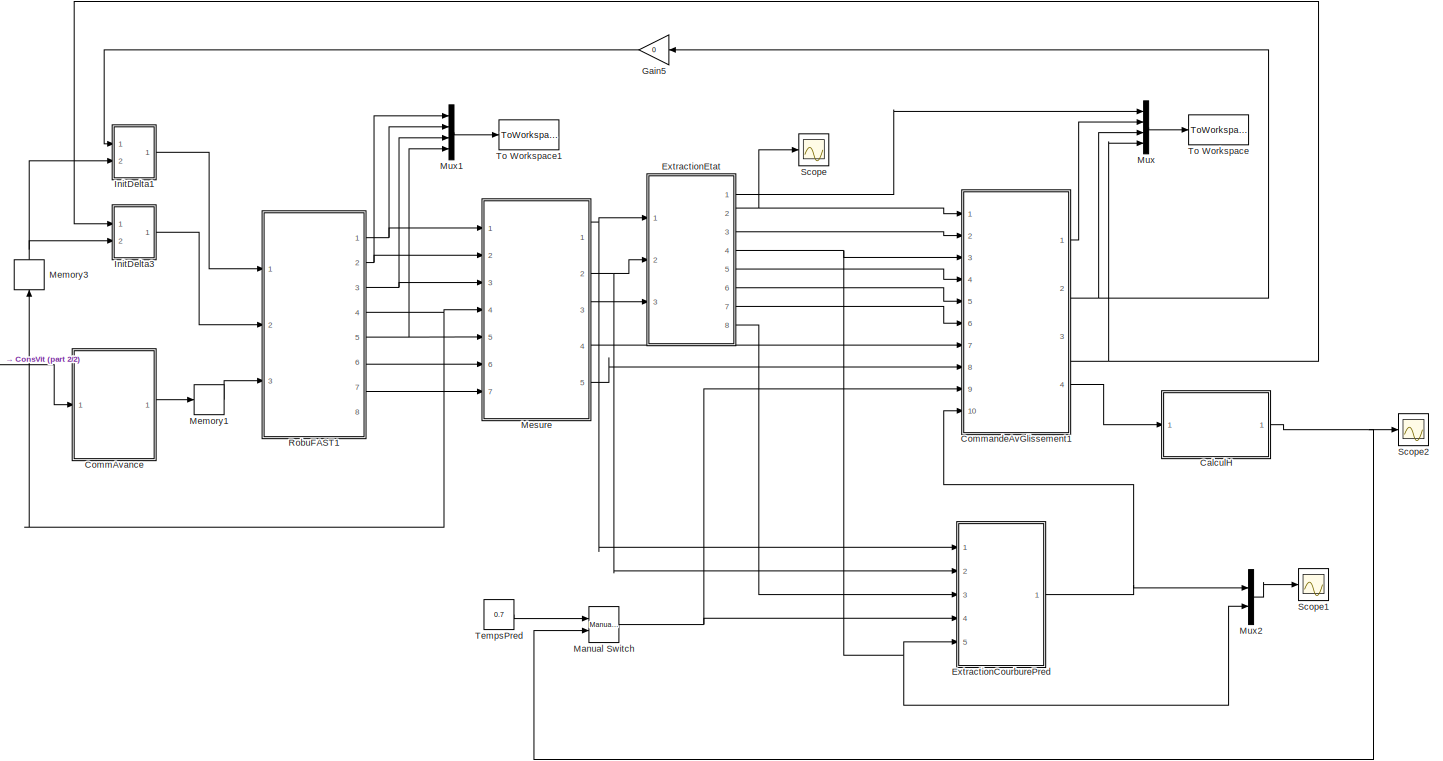
[diagram: root canvas - part 1/2, most of the canvas]
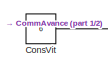
[diagram: root canvas - part 2/2, middle left region]
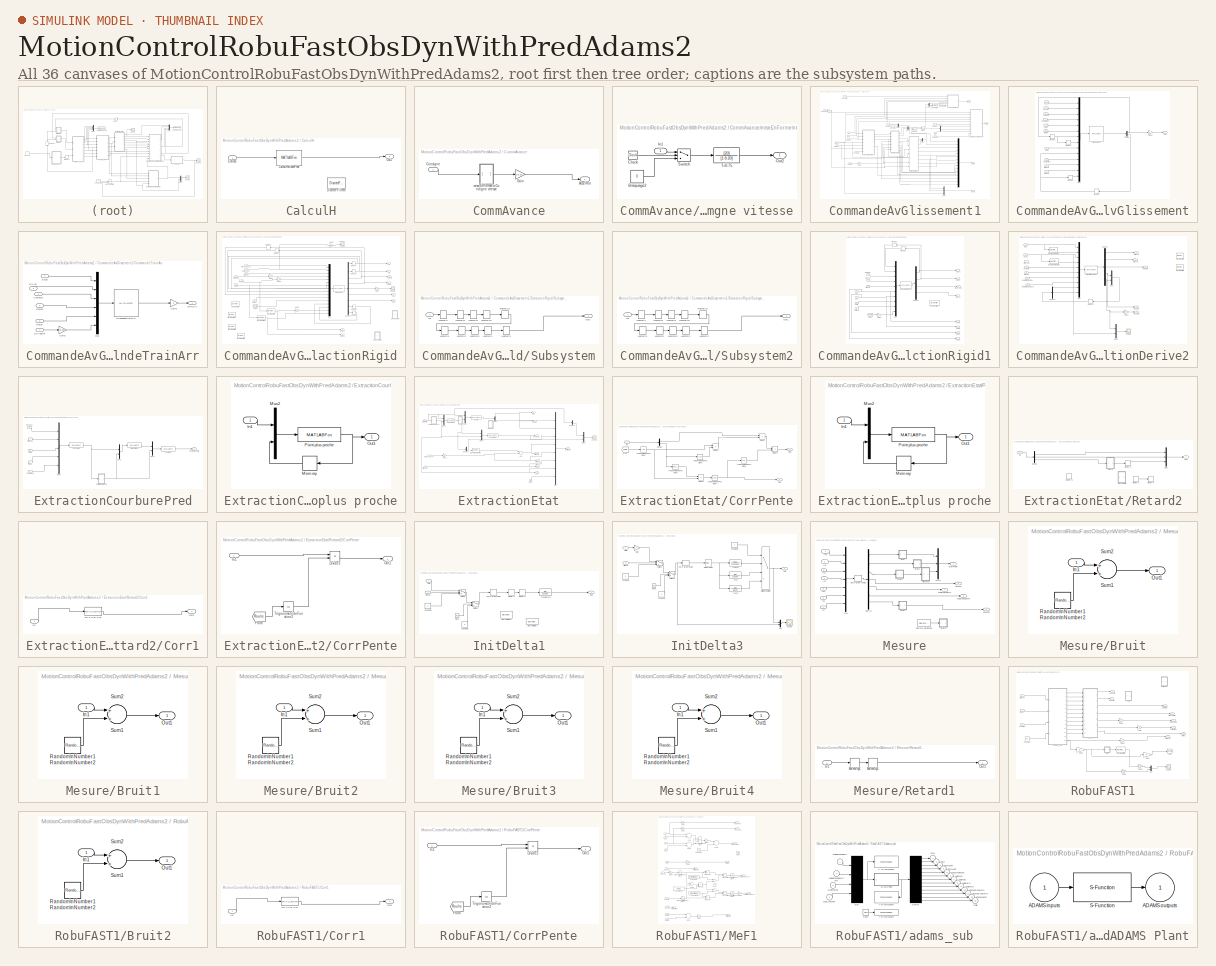
[diagram: thumbnail index - all 36 canvases of the model, root first then tree order]
MODEL MotionControlRobuFastObsDynWithPredAdams2
KIND model
CONFIG StartFcn = parameters
CONFIG StopFcn = replay
BLOCK [SubSystem] CalculH
  FunctionWithSeparateData = off
  MaskHideContents = off
  MinAlgLoopOccurrences = off
  Opaque = off
  Ports = [1, 1]
  PropExecContextOutsideSubsystem = off
  RTWSystemCode = Auto
  RequestExecContextInheritance = off
BLOCK [MATLABFcn] CalculH/CalculHorizonPred
  MATLABFcn = CalculHorizonPred(u(1),u(2),u(3))
  Output1D = off
  OutputDimensions = 1
  OutputSignalType = real
  Ports = [1, 1]
  SampleTime = 0.05
BLOCK [DiscreteFilter] CalculH/Discrete Filter8
  Denominator = [1.0000    -0.95]
  Numerator = [0.025 0.025]
  SampleTime = 0.05
BLOCK [Inport] CalculH/Entrees
  IconDisplay = Port number
BLOCK [Outport] CalculH/Out1
  IconDisplay = Port number
BLOCK [SubSystem] CommAvance
  FunctionWithSeparateData = off
  MaskHideContents = off
  MinAlgLoopOccurrences = off
  Opaque = off
  Ports = [1, 1]
  PropExecContextOutsideSubsystem = off
  RTWSystemCode = Auto
  RequestExecContextInheritance = off
BLOCK [Outport] CommAvance/AccelRot
  IconDisplay = Port number
  OutDataType = sfix(16)
  OutScaling = 2^0
BLOCK [Inport] CommAvance/Consigne
  IconDisplay = Port number
  OutDataType = sfix(16)
  OutScaling = 2^0
BLOCK [Gain] CommAvance/Gain
  Gain = 1/0.25
  OutDataType = sfix(16)
  OutDataTypeMode = Inherit via internal rule
  OutDataTypeStr = Inherit: Inherit via internal rule
  OutScaling = 2^0
  ParamDataTypeStr = Inherit: Inherit via internal rule
  ParameterDataType = sfix(16)
  ParameterDataTypeMode = Inherit via internal rule
  ParameterScaling = 2^0
  SaturateOnIntegerOverflow = off
BLOCK [SubSystem] CommAvance/miseEnForme\nCondigne vitesse
  FunctionWithSeparateData = off
  MaskHideContents = off
  MinAlgLoopOccurrences = off
  Opaque = off
  Ports = [1, 1]
  PropExecContextOutsideSubsystem = off
  RTWSystemCode = Auto
  RequestExecContextInheritance = off
BLOCK [Constant] CommAvance/miseEnForme\nCondigne vitesse/Braquage2
  OutDataType = sfix(16)
  OutScaling = 2^0
  Value = 0
BLOCK [Clock] CommAvance/miseEnForme\nCondigne vitesse/Clock
  Decimation = 10
BLOCK [Inport] CommAvance/miseEnForme\nCondigne vitesse/In1
  IconDisplay = Port number
  OutDataType = sfix(16)
  OutScaling = 2^0
BLOCK [Outport] CommAvance/miseEnForme\nCondigne vitesse/Out2
  IconDisplay = Port number
  OutDataType = sfix(16)
  OutScaling = 2^0
BLOCK [Switch] CommAvance/miseEnForme\nCondigne vitesse/Switch
  InputSameDT = off
  SaturateOnIntegerOverflow = off
  Threshold = 1.5
BLOCK [TransferFcn] CommAvance/miseEnForme\nCondigne vitesse/T=0.75
  Denominator = [1 8 20]
  Numerator = [20]
BLOCK [SubSystem] CommandeAvGlissement1
  FunctionWithSeparateData = off
  MaskHideContents = off
  MinAlgLoopOccurrences = off
  Opaque = off
  Ports = [10, 4]
  PropExecContextOutsideSubsystem = off
  RTWSystemCode = Auto
  RequestExecContextInheritance = off
BLOCK [Inport] CommandeAvGlissement1/BraqARMes
  IconDisplay = Port number
  OutDataType = sfix(16)
  OutScaling = 2^0
  Port = 8
BLOCK [Inport] CommandeAvGlissement1/BraqMes
  IconDisplay = Port number
  OutDataType = sfix(16)
  OutScaling = 2^0
  Port = 7
BLOCK [Outport] CommandeAvGlissement1/CalculH
  IconDisplay = Port number
  OutDataType = sfix(16)
  OutScaling = 2^0
  Port = 4
BLOCK [Inport] CommandeAvGlissement1/CapDeriv
  IconDisplay = Port number
  OutDataType = sfix(16)
  OutScaling = 2^0
  Port = 5
BLOCK [SubSystem] CommandeAvGlissement1/CommandeAvGlissement
  FunctionWithSeparateData = off
  MaskHideContents = off
  MinAlgLoopOccurrences = off
  Opaque = off
  Ports = [10, 1]
  PropExecContextOutsideSubsystem = off
  RTWSystemCode = Auto
  RequestExecContextInheritance = off
BLOCK [Inport] CommandeAvGlissement1/CommandeAvGlissement/BetaF
  IconDisplay = Port number
  OutDataType = sfix(16)
  OutScaling = 2^0
  Port = 8
BLOCK [Inport] CommandeAvGlissement1/CommandeAvGlissement/BetaR
  IconDisplay = Port number
  OutDataType = sfix(16)
  OutScaling = 2^0
  Port = 7
BLOCK [Inport] CommandeAvGlissement1/CommandeAvGlissement/BraqArr
  IconDisplay = Port number
  OutDataType = sfix(16)
  OutScaling = 2^0
BLOCK [MATLABFcn] CommandeAvGlissement1/CommandeAvGlissement/Braquage3
  MATLABFcn = braquage3train2(u(1),u(2),u(3),u(4),u(5),u(6),u(7),u(8),u(9),u(10),u(11),u(12),u(13),u(14))
  OutputDimensions = 2
  OutputSignalType = real
  Ports = [1, 1]
  SampleTime = 0.05
BLOCK [Inport] CommandeAvGlissement1/CommandeAvGlissement/Courbure
  IconDisplay = Port number
  OutDataType = sfix(16)
  OutScaling = 2^0
  Port = 5
BLOCK [Inport] CommandeAvGlissement1/CommandeAvGlissement/CourbureH
  IconDisplay = Port number
  OutDataType = sfix(16)
  OutScaling = 2^0
  Port = 10
BLOCK [Outport] CommandeAvGlissement1/CommandeAvGlissement/Delta
  IconDisplay = Port number
  OutDataType = sfix(16)
  OutScaling = 2^0
BLOCK [Demux] CommandeAvGlissement1/CommandeAvGlissement/Demux
  DisplayOption = bar
  Outputs = 2
  Ports = [1, 2]
BLOCK [Inport] CommandeAvGlissement1/CommandeAvGlissement/EcAng
  IconDisplay = Port number
  OutDataType = sfix(16)
  OutScaling = 2^0
  Port = 4
BLOCK [Inport] CommandeAvGlissement1/CommandeAvGlissement/EcLat
  IconDisplay = Port number
  OutDataType = sfix(16)
  OutScaling = 2^0
  Port = 3
BLOCK [Gain] CommandeAvGlissement1/CommandeAvGlissement/Gain1
  OutDataType = sfix(16)
  OutDataTypeMode = Inherit via internal rule
  OutDataTypeStr = Inherit: Inherit via internal rule
  OutScaling = 2^0
  ParamDataTypeStr = Inherit: Inherit via internal rule
  ParameterDataType = sfix(16)
  ParameterDataTypeMode = Inherit via internal rule
  ParameterScaling = 2^0
  SaturateOnIntegerOverflow = off
BLOCK [Memory] CommandeAvGlissement1/CommandeAvGlissement/Memory1
  InheritSampleTime = on
BLOCK [Memory] CommandeAvGlissement1/CommandeAvGlissement/Memory2
  InheritSampleTime = on
BLOCK [Memory] CommandeAvGlissement1/CommandeAvGlissement/Memory3
  InheritSampleTime = on
BLOCK [Memory] CommandeAvGlissement1/CommandeAvGlissement/Memory4
  InheritSampleTime = on
BLOCK [Mux] CommandeAvGlissement1/CommandeAvGlissement/Mux
  DisplayOption = bar
  Inputs = 14
  Ports = [14, 1]
BLOCK [Inport] CommandeAvGlissement1/CommandeAvGlissement/Tpred
  IconDisplay = Port number
  OutDataType = sfix(16)
  OutScaling = 2^0
  Port = 9
BLOCK [Inport] CommandeAvGlissement1/CommandeAvGlissement/Vitesse
  IconDisplay = Port number
  OutDataType = sfix(16)
  OutScaling = 2^0
  Port = 2
BLOCK [Inport] CommandeAvGlissement1/CommandeAvGlissement/dCourbure
  IconDisplay = Port number
  OutDataType = sfix(16)
  OutScaling = 2^0
  Port = 6
BLOCK [SubSystem] CommandeAvGlissement1/CommandeTrainArr
  FunctionWithSeparateData = off
  MaskHideContents = off
  MinAlgLoopOccurrences = off
  Opaque = off
  Ports = [6, 1]
  PropExecContextOutsideSubsystem = off
  RTWSystemCode = Auto
  RequestExecContextInheritance = off
BLOCK [Inport] CommandeAvGlissement1/CommandeTrainArr/BetaF
  IconDisplay = Port number
  OutDataType = sfix(16)
  OutScaling = 2^0
  Port = 6
BLOCK [Inport] CommandeAvGlissement1/CommandeTrainArr/BetaR
  IconDisplay = Port number
  OutDataType = sfix(16)
  OutScaling = 2^0
  Port = 5
BLOCK [MATLABFcn] CommandeAvGlissement1/CommandeTrainArr/Braquage2train2Arr
  MATLABFcn = braquage2train2Arr(u(1),u(2),u(3),u(4),u(5),u(6))
  OutputDimensions = 1
  OutputSignalType = real
  Ports = [1, 1]
  SampleTime = 0.05
BLOCK [Inport] CommandeAvGlissement1/CommandeTrainArr/Courbure
  IconDisplay = Port number
  OutDataType = sfix(16)
  OutScaling = 2^0
  Port = 4
BLOCK [Outport] CommandeAvGlissement1/CommandeTrainArr/DeltaArr
  IconDisplay = Port number
  OutDataType = sfix(16)
  OutScaling = 2^0
BLOCK [Inport] CommandeAvGlissement1/CommandeTrainArr/EcAng
  IconDisplay = Port number
  OutDataType = sfix(16)
  OutScaling = 2^0
  Port = 3
BLOCK [Inport] CommandeAvGlissement1/CommandeTrainArr/EcAngRef
  IconDisplay = Port number
  OutDataType = sfix(16)
  OutScaling = 2^0
BLOCK [Inport] CommandeAvGlissement1/CommandeTrainArr/EcLat
  IconDisplay = Port number
  OutDataType = sfix(16)
  OutScaling = 2^0
  Port = 2
BLOCK [Gain] CommandeAvGlissement1/CommandeTrainArr/Gain1
  Gain = 0
  OutDataType = sfix(16)
  OutDataTypeMode = Inherit via internal rule
  OutDataTypeStr = Inherit: Inherit via internal rule
  OutScaling = 2^0
  ParamDataTypeStr = Inherit: Inherit via internal rule
  ParameterDataType = sfix(16)
  ParameterDataTypeMode = Inherit via internal rule
  ParameterScaling = 2^0
  SaturateOnIntegerOverflow = off
BLOCK [Gain] CommandeAvGlissement1/CommandeTrainArr/Gain2
  Gain = pi/180
  OutDataType = sfix(16)
  OutDataTypeMode = Inherit via internal rule
  OutDataTypeStr = Inherit: Inherit via internal rule
  OutScaling = 2^0
  ParamDataTypeStr = Inherit: Inherit via internal rule
  ParameterDataType = sfix(16)
  ParameterDataTypeMode = Inherit via internal rule
  ParameterScaling = 2^0
  SaturateOnIntegerOverflow = off
BLOCK [Mux] CommandeAvGlissement1/CommandeTrainArr/Mux
  DisplayOption = bar
  Inputs = 6
  Ports = [6, 1]
BLOCK [Constant] CommandeAvGlissement1/Constant
  OutDataType = sfix(16)
  OutScaling = 2^0
  Value = 0
BLOCK [Constant] CommandeAvGlissement1/Constant1
  OutDataType = sfix(16)
  OutScaling = 2^0
  Value = 0
BLOCK [Constant] CommandeAvGlissement1/Constant2
  OutDataType = sfix(16)
  OutScaling = 2^0
  Value = 0
BLOCK [Constant] CommandeAvGlissement1/Constant3
  OutDataType = sfix(16)
  OutScaling = 2^0
  Value = 0
BLOCK [Inport] CommandeAvGlissement1/Courbure
  IconDisplay = Port number
  OutDataType = sfix(16)
  OutScaling = 2^0
  Port = 3
BLOCK [Inport] CommandeAvGlissement1/CourbureH
  IconDisplay = Port number
  OutDataType = sfix(16)
  OutScaling = 2^0
  Port = 10
BLOCK [Outport] CommandeAvGlissement1/Delta
  IconDisplay = Port number
  OutDataType = sfix(16)
  OutScaling = 2^0
  Port = 3
BLOCK [Outport] CommandeAvGlissement1/DeltaArr
  IconDisplay = Port number
  OutDataType = sfix(16)
  OutScaling = 2^0
  Port = 2
BLOCK [Demux] CommandeAvGlissement1/Demux
  DisplayOption = bar
  Outputs = 2
  Ports = [1, 2]
BLOCK [Demux] CommandeAvGlissement1/Demux1
  DisplayOption = bar
  Outputs = 2
  Ports = [1, 2]
BLOCK [DiscreteFilter] CommandeAvGlissement1/Discrete Filter1
  Denominator = [1.0000    -0.97]
  Numerator = [0.015 0.015]
  SampleTime = 0.05
BLOCK [DiscreteFilter] CommandeAvGlissement1/Discrete Filter7
  Denominator = [1.0000    -0.97]
  Numerator = [0.015 0.015]
  SampleTime = 0.05
BLOCK [Inport] CommandeAvGlissement1/EcAngDeriv
  IconDisplay = Port number
  OutDataType = sfix(16)
  OutScaling = 2^0
  Port = 6
BLOCK [Inport] CommandeAvGlissement1/Ecap
  IconDisplay = Port number
  OutDataType = sfix(16)
  OutScaling = 2^0
  Port = 2
BLOCK [Inport] CommandeAvGlissement1/Elat
  IconDisplay = Port number
  OutDataType = sfix(16)
  OutScaling = 2^0
BLOCK [Reference] CommandeAvGlissement1/EstMethod  REF=simulink/Signal\nRouting/Manual Switch
  FunctionWithSeparateData = off
  Ports = [2, 1]
  RTWMemSecDataConstants = Inherit from model
  RTWMemSecDataInternal = Inherit from model
  RTWMemSecDataParameters = Inherit from model
  RTWMemSecFuncExecute = Inherit from model
  RTWMemSecFuncInitTerm = Inherit from model
  ShowPortLabels = FromPortIcon
  SourceBlock = simulink/Signal\nRouting/Manual Switch
  SourceType = Manual Switch
  SystemSampleTime = -1
  action = 0
  sw = 0
  varsize = off
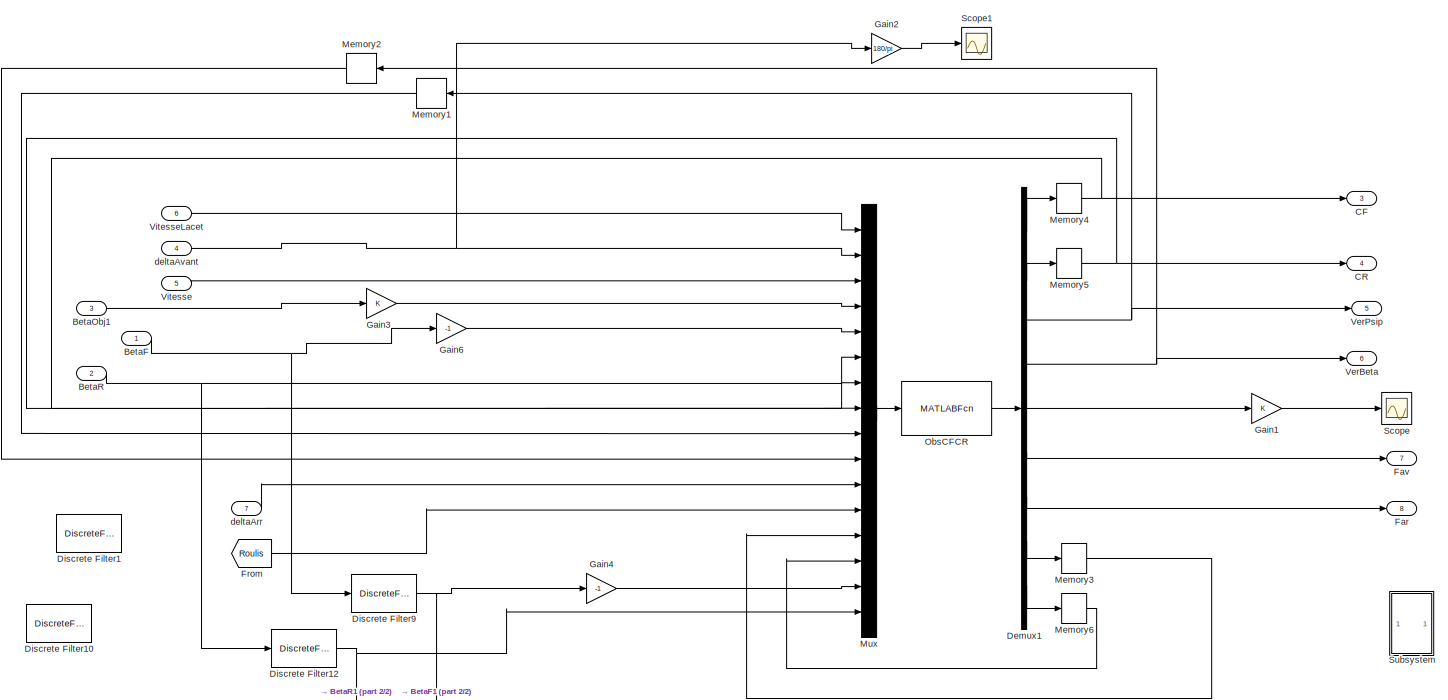
[diagram: CommandeAvGlissement1/ExtractionRigid - part 1/2, most of the canvas]
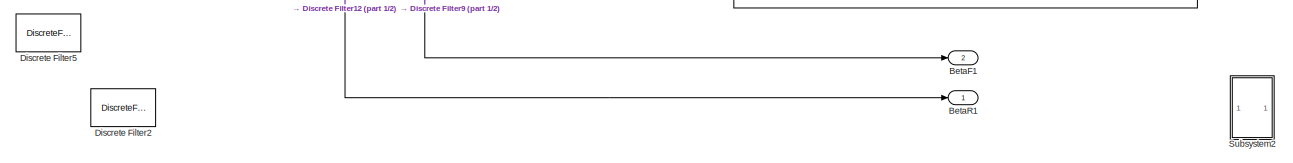
[diagram: CommandeAvGlissement1/ExtractionRigid - part 2/2, full width, bottom band]
BLOCK [SubSystem] CommandeAvGlissement1/ExtractionRigid
  FunctionWithSeparateData = off
  MaskHideContents = off
  MinAlgLoopOccurrences = off
  Opaque = off
  Ports = [7, 8]
  PropExecContextOutsideSubsystem = off
  RTWSystemCode = Auto
  RequestExecContextInheritance = off
BLOCK [Inport] CommandeAvGlissement1/ExtractionRigid/BetaF
  IconDisplay = Port number
  OutDataType = sfix(16)
  OutScaling = 2^0
BLOCK [Outport] CommandeAvGlissement1/ExtractionRigid/BetaF1
  IconDisplay = Port number
  OutDataType = sfix(16)
  OutScaling = 2^0
  Port = 2
BLOCK [Inport] CommandeAvGlissement1/ExtractionRigid/BetaObj1
  IconDisplay = Port number
  OutDataType = sfix(16)
  OutScaling = 2^0
  Port = 3
BLOCK [Inport] CommandeAvGlissement1/ExtractionRigid/BetaR
  IconDisplay = Port number
  OutDataType = sfix(16)
  OutScaling = 2^0
  Port = 2
BLOCK [Outport] CommandeAvGlissement1/ExtractionRigid/BetaR1
  IconDisplay = Port number
  OutDataType = sfix(16)
  OutScaling = 2^0
BLOCK [Outport] CommandeAvGlissement1/ExtractionRigid/CF
  IconDisplay = Port number
  OutDataType = sfix(16)
  OutScaling = 2^0
  Port = 3
BLOCK [Outport] CommandeAvGlissement1/ExtractionRigid/CR
  IconDisplay = Port number
  OutDataType = sfix(16)
  OutScaling = 2^0
  Port = 4
BLOCK [Demux] CommandeAvGlissement1/ExtractionRigid/Demux1
  DisplayOption = bar
  Outputs = 9
  Ports = [1, 9]
BLOCK [DiscreteFilter] CommandeAvGlissement1/ExtractionRigid/Discrete Filter1
  Denominator = [1.0000    -0.98]
  Numerator = [0.01 0.01]
  SampleTime = 0.05
BLOCK [DiscreteFilter] CommandeAvGlissement1/ExtractionRigid/Discrete Filter10
  Denominator = [1.0000    -0.96]
  Numerator = [0.02 0.02]
  SampleTime = 0.05
BLOCK [DiscreteFilter] CommandeAvGlissement1/ExtractionRigid/Discrete Filter12
  Denominator = [1.0000    -0.9]
  Numerator = [0.05 0.05]
  SampleTime = 0.05
BLOCK [DiscreteFilter] CommandeAvGlissement1/ExtractionRigid/Discrete Filter2
  Denominator = [1.0000    -0.8]
  Numerator = [0.1 0.1]
  SampleTime = 0.05
BLOCK [DiscreteFilter] CommandeAvGlissement1/ExtractionRigid/Discrete Filter5
  Denominator = [1.0000    -0.9]
  Numerator = [0.05 0.05]
  SampleTime = 0.05
BLOCK [DiscreteFilter] CommandeAvGlissement1/ExtractionRigid/Discrete Filter9
  Denominator = [1.0000    -0.9]
  Numerator = [0.05 0.05]
  SampleTime = 0.05
BLOCK [Outport] CommandeAvGlissement1/ExtractionRigid/Far
  IconDisplay = Port number
  OutDataType = sfix(16)
  OutScaling = 2^0
  Port = 8
BLOCK [Outport] CommandeAvGlissement1/ExtractionRigid/Fav
  IconDisplay = Port number
  OutDataType = sfix(16)
  OutScaling = 2^0
  Port = 7
BLOCK [From] CommandeAvGlissement1/ExtractionRigid/From
  CloseFcn = tagdialog Close
  GotoTag = Roulis
  TagVisibility = global
BLOCK [Gain] CommandeAvGlissement1/ExtractionRigid/Gain1
  OutDataType = sfix(16)
  OutDataTypeMode = Inherit via internal rule
  OutDataTypeStr = Inherit: Inherit via internal rule
  OutScaling = 2^0
  ParamDataTypeStr = Inherit: Inherit via internal rule
  ParameterDataType = sfix(16)
  ParameterDataTypeMode = Inherit via internal rule
  ParameterScaling = 2^0
  SaturateOnIntegerOverflow = off
BLOCK [Gain] CommandeAvGlissement1/ExtractionRigid/Gain2
  Gain = 180/pi
  OutDataType = sfix(16)
  OutDataTypeMode = Inherit via internal rule
  OutDataTypeStr = Inherit: Inherit via internal rule
  OutScaling = 2^0
  ParamDataTypeStr = Inherit: Inherit via internal rule
  ParameterDataType = sfix(16)
  ParameterDataTypeMode = Inherit via internal rule
  ParameterScaling = 2^0
  SaturateOnIntegerOverflow = off
BLOCK [Gain] CommandeAvGlissement1/ExtractionRigid/Gain3
  OutDataType = sfix(16)
  OutDataTypeMode = Inherit via internal rule
  OutDataTypeStr = Inherit: Inherit via internal rule
  OutScaling = 2^0
  ParamDataTypeStr = Inherit: Inherit via internal rule
  ParameterDataType = sfix(16)
  ParameterDataTypeMode = Inherit via internal rule
  ParameterScaling = 2^0
  SaturateOnIntegerOverflow = off
BLOCK [Gain] CommandeAvGlissement1/ExtractionRigid/Gain4
  Gain = -1
  OutDataType = sfix(16)
  OutDataTypeMode = Inherit via internal rule
  OutDataTypeStr = Inherit: Inherit via internal rule
  OutScaling = 2^0
  ParamDataTypeStr = Inherit: Inherit via internal rule
  ParameterDataType = sfix(16)
  ParameterDataTypeMode = Inherit via internal rule
  ParameterScaling = 2^0
  SaturateOnIntegerOverflow = off
BLOCK [Gain] CommandeAvGlissement1/ExtractionRigid/Gain6
  Gain = -1
  OutDataType = sfix(16)
  OutDataTypeMode = Inherit via internal rule
  OutDataTypeStr = Inherit: Inherit via internal rule
  OutScaling = 2^0
  ParamDataTypeStr = Inherit: Inherit via internal rule
  ParameterDataType = sfix(16)
  ParameterDataTypeMode = Inherit via internal rule
  ParameterScaling = 2^0
  SaturateOnIntegerOverflow = off
BLOCK [Memory] CommandeAvGlissement1/ExtractionRigid/Memory1
  InheritSampleTime = on
BLOCK [Memory] CommandeAvGlissement1/ExtractionRigid/Memory2
  InheritSampleTime = on
BLOCK [Memory] CommandeAvGlissement1/ExtractionRigid/Memory3
  InheritSampleTime = on
BLOCK [Memory] CommandeAvGlissement1/ExtractionRigid/Memory4
  InheritSampleTime = on
  X0 = 5000
BLOCK [Memory] CommandeAvGlissement1/ExtractionRigid/Memory5
  InheritSampleTime = on
  X0 = 5000
BLOCK [Memory] CommandeAvGlissement1/ExtractionRigid/Memory6
  InheritSampleTime = on
BLOCK [Mux] CommandeAvGlissement1/ExtractionRigid/Mux
  DisplayOption = bar
  Inputs = 16
  Ports = [16, 1]
BLOCK [MATLABFcn] CommandeAvGlissement1/ExtractionRigid/ObsCFCR
  MATLABFcn = ObsCFCRMITtrain2(u(1),u(2),u(3),u(4),u(5),u(6),u(7),u(8),u(9),u(10),u(11),u(12),u(13),u(14),u(15),u(16))
  OutputDimensions = 9
  OutputSignalType = real
  Ports = [1, 1]
  SampleTime = 0.05
BLOCK [Scope] CommandeAvGlissement1/ExtractionRigid/Scope
  DataFormat = StructureWithTime
  Floating = off
  NumInputPorts = 1
  Ports = [1]
  SampleTime = 0
  SaveName = ScopeData6
  TimeRange = 10
  YMax = 200
  YMin = 200
  ZoomMode = yonly
BLOCK [Scope] CommandeAvGlissement1/ExtractionRigid/Scope1
  DataFormat = StructureWithTime
  Floating = off
  NumInputPorts = 1
  Ports = [1]
  SampleTime = 0
  SaveName = ScopeData5
  TimeRange = 10
  YMax = 35000
  YMin = 0
  ZoomMode = yonly
BLOCK [SubSystem] CommandeAvGlissement1/ExtractionRigid/Subsystem
  FunctionWithSeparateData = off
  MaskHideContents = off
  MinAlgLoopOccurrences = off
  Opaque = off
  Ports = [1, 1]
  PropExecContextOutsideSubsystem = off
  RTWSystemCode = Auto
  RequestExecContextInheritance = off
BLOCK [Inport] CommandeAvGlissement1/ExtractionRigid/Subsystem/In1
  IconDisplay = Port number
BLOCK [Memory] CommandeAvGlissement1/ExtractionRigid/Subsystem/Memory1
  InheritSampleTime = on
BLOCK [Memory] CommandeAvGlissement1/ExtractionRigid/Subsystem/Memory10
  InheritSampleTime = on
BLOCK [Memory] CommandeAvGlissement1/ExtractionRigid/Subsystem/Memory11
  InheritSampleTime = on
BLOCK [Memory] CommandeAvGlissement1/ExtractionRigid/Subsystem/Memory2
  InheritSampleTime = on
BLOCK [Memory] CommandeAvGlissement1/ExtractionRigid/Subsystem/Memory3
  InheritSampleTime = on
BLOCK [Memory] CommandeAvGlissement1/ExtractionRigid/Subsystem/Memory4
  InheritSampleTime = on
BLOCK [Memory] CommandeAvGlissement1/ExtractionRigid/Subsystem/Memory5
  InheritSampleTime = on
BLOCK [Memory] CommandeAvGlissement1/ExtractionRigid/Subsystem/Memory7
  InheritSampleTime = on
BLOCK [Memory] CommandeAvGlissement1/ExtractionRigid/Subsystem/Memory8
  InheritSampleTime = on
BLOCK [Memory] CommandeAvGlissement1/ExtractionRigid/Subsystem/Memory9
  InheritSampleTime = on
BLOCK [Outport] CommandeAvGlissement1/ExtractionRigid/Subsystem/Out1
  IconDisplay = Port number
BLOCK [SubSystem] CommandeAvGlissement1/ExtractionRigid/Subsystem2
  FunctionWithSeparateData = off
  MaskHideContents = off
  MinAlgLoopOccurrences = off
  Opaque = off
  Ports = [1, 1]
  PropExecContextOutsideSubsystem = off
  RTWSystemCode = Auto
  RequestExecContextInheritance = off
BLOCK [Inport] CommandeAvGlissement1/ExtractionRigid/Subsystem2/In1
  IconDisplay = Port number
BLOCK [Memory] CommandeAvGlissement1/ExtractionRigid/Subsystem2/Memory1
  InheritSampleTime = on
BLOCK [Memory] CommandeAvGlissement1/ExtractionRigid/Subsystem2/Memory10
  InheritSampleTime = on
BLOCK [Memory] CommandeAvGlissement1/ExtractionRigid/Subsystem2/Memory11
  InheritSampleTime = on
BLOCK [Memory] CommandeAvGlissement1/ExtractionRigid/Subsystem2/Memory2
  InheritSampleTime = on
BLOCK [Memory] CommandeAvGlissement1/ExtractionRigid/Subsystem2/Memory3
  InheritSampleTime = on
BLOCK [Memory] CommandeAvGlissement1/ExtractionRigid/Subsystem2/Memory4
  InheritSampleTime = on
BLOCK [Memory] CommandeAvGlissement1/ExtractionRigid/Subsystem2/Memory5
  InheritSampleTime = on
BLOCK [Memory] CommandeAvGlissement1/ExtractionRigid/Subsystem2/Memory7
  InheritSampleTime = on
BLOCK [Memory] CommandeAvGlissement1/ExtractionRigid/Subsystem2/Memory8
  InheritSampleTime = on
BLOCK [Memory] CommandeAvGlissement1/ExtractionRigid/Subsystem2/Memory9
  InheritSampleTime = on
BLOCK [Outport] CommandeAvGlissement1/ExtractionRigid/Subsystem2/Out1
  IconDisplay = Port number
BLOCK [Outport] CommandeAvGlissement1/ExtractionRigid/VerBeta
  IconDisplay = Port number
  OutDataType = sfix(16)
  OutScaling = 2^0
  Port = 6
BLOCK [Outport] CommandeAvGlissement1/ExtractionRigid/VerPsip
  IconDisplay = Port number
  OutDataType = sfix(16)
  OutScaling = 2^0
  Port = 5
BLOCK [Inport] CommandeAvGlissement1/ExtractionRigid/Vitesse
  IconDisplay = Port number
  OutDataType = sfix(16)
  OutScaling = 2^0
  Port = 5
BLOCK [Inport] CommandeAvGlissement1/ExtractionRigid/VitesseLacet
  IconDisplay = Port number
  OutDataType = sfix(16)
  OutScaling = 2^0
  Port = 6
BLOCK [Inport] CommandeAvGlissement1/ExtractionRigid/deltaArr
  IconDisplay = Port number
  OutDataType = sfix(16)
  OutScaling = 2^0
  Port = 7
BLOCK [Inport] CommandeAvGlissement1/ExtractionRigid/deltaAvant
  IconDisplay = Port number
  OutDataType = sfix(16)
  OutScaling = 2^0
  Port = 4
BLOCK [SubSystem] CommandeAvGlissement1/ExtractionRigid1
  FunctionWithSeparateData = off
  MaskHideContents = off
  MinAlgLoopOccurrences = off
  Opaque = off
  Ports = [7, 8]
  PropExecContextOutsideSubsystem = off
  RTWSystemCode = Auto
  RequestExecContextInheritance = off
BLOCK [Inport] CommandeAvGlissement1/ExtractionRigid1/BetaObj
  IconDisplay = Port number
  OutDataType = sfix(16)
  OutScaling = 2^0
  Port = 3
BLOCK [Inport] CommandeAvGlissement1/ExtractionRigid1/CF1
  IconDisplay = Port number
  OutDataType = sfix(16)
  OutScaling = 2^0
BLOCK [Outport] CommandeAvGlissement1/ExtractionRigid1/CFBrut
  IconDisplay = Port number
  OutDataType = sfix(16)
  OutScaling = 2^0
  Port = 7
BLOCK [Outport] CommandeAvGlissement1/ExtractionRigid1/CFFilt
  IconDisplay = Port number
  OutDataType = sfix(16)
  OutScaling = 2^0
  Port = 5
BLOCK [Inport] CommandeAvGlissement1/ExtractionRigid1/CR1
  IconDisplay = Port number
  OutDataType = sfix(16)
  OutScaling = 2^0
  Port = 2
BLOCK [Outport] CommandeAvGlissement1/ExtractionRigid1/CRBrut
  IconDisplay = Port number
  OutDataType = sfix(16)
  OutScaling = 2^0
  Port = 8
BLOCK [Outport] CommandeAvGlissement1/ExtractionRigid1/CRFilt
  IconDisplay = Port number
  OutDataType = sfix(16)
  OutScaling = 2^0
  Port = 6
BLOCK [Inport] CommandeAvGlissement1/ExtractionRigid1/Delta
  IconDisplay = Port number
  OutDataType = sfix(16)
  OutScaling = 2^0
  Port = 5
BLOCK [Inport] CommandeAvGlissement1/ExtractionRigid1/DeltaArr
  IconDisplay = Port number
  OutDataType = sfix(16)
  OutScaling = 2^0
  Port = 7
BLOCK [Demux] CommandeAvGlissement1/ExtractionRigid1/Demux1
  DisplayOption = bar
  Ports = [1, 4]
BLOCK [DiscreteFilter] CommandeAvGlissement1/ExtractionRigid1/Discrete Filter3
  Denominator = [1.0000    -0.5]
  Numerator = [0.25 0.25]
  SampleTime = 0.05
BLOCK [From] CommandeAvGlissement1/ExtractionRigid1/From
  CloseFcn = tagdialog Close
  GotoTag = Roulis
  TagVisibility = global
BLOCK [Gain] CommandeAvGlissement1/ExtractionRigid1/Gain5
  OutDataType = sfix(16)
  OutDataTypeMode = Inherit via internal rule
  OutDataTypeStr = Inherit: Inherit via internal rule
  OutScaling = 2^0
  ParamDataTypeStr = Inherit: Inherit via internal rule
  ParameterDataType = sfix(16)
  ParameterDataTypeMode = Inherit via internal rule
  ParameterScaling = 2^0
  SaturateOnIntegerOverflow = off
BLOCK [Outport] CommandeAvGlissement1/ExtractionRigid1/GlissArr
  IconDisplay = Port number
  OutDataType = sfix(16)
  OutScaling = 2^0
BLOCK [Outport] CommandeAvGlissement1/ExtractionRigid1/GlissAvant
  IconDisplay = Port number
  OutDataType = sfix(16)
  OutScaling = 2^0
  Port = 2
BLOCK [Memory] CommandeAvGlissement1/ExtractionRigid1/Memory1
  InheritSampleTime = on
BLOCK [Memory] CommandeAvGlissement1/ExtractionRigid1/Memory2
  InheritSampleTime = on
BLOCK [Mux] CommandeAvGlissement1/ExtractionRigid1/Mux
  DisplayOption = bar
  Inputs = 10
  Ports = [10, 1]
BLOCK [MATLABFcn] CommandeAvGlissement1/ExtractionRigid1/Observateur Dyn
  MATLABFcn = ObsDynTrain2(u(1),u(2),u(3),u(4),u(5),u(6),u(7),u(8),u(9),u(10))
  OutputDimensions = 4
  OutputSignalType = real
  Ports = [1, 1]
  SampleTime = 0.05
BLOCK [Outport] CommandeAvGlissement1/ExtractionRigid1/VerBet
  IconDisplay = Port number
  OutDataType = sfix(16)
  OutScaling = 2^0
  Port = 4
BLOCK [Outport] CommandeAvGlissement1/ExtractionRigid1/VerLac
  IconDisplay = Port number
  OutDataType = sfix(16)
  OutScaling = 2^0
  Port = 3
BLOCK [Inport] CommandeAvGlissement1/ExtractionRigid1/VitLacet
  IconDisplay = Port number
  OutDataType = sfix(16)
  OutScaling = 2^0
  Port = 6
BLOCK [Inport] CommandeAvGlissement1/ExtractionRigid1/Vitesse
  IconDisplay = Port number
  OutDataType = sfix(16)
  OutScaling = 2^0
  Port = 4
BLOCK [Gain] CommandeAvGlissement1/Gain4
  OutDataType = sfix(16)
  OutDataTypeMode = Inherit via internal rule
  OutDataTypeStr = Inherit: Inherit via internal rule
  OutScaling = 2^0
  ParamDataTypeStr = Inherit: Inherit via internal rule
  ParameterDataType = sfix(16)
  ParameterDataTypeMode = Inherit via internal rule
  ParameterScaling = 2^0
  SaturateOnIntegerOverflow = off
BLOCK [Gain] CommandeAvGlissement1/Gain5
  OutDataType = sfix(16)
  OutDataTypeMode = Inherit via internal rule
  OutDataTypeStr = Inherit: Inherit via internal rule
  OutScaling = 2^0
  ParamDataTypeStr = Inherit: Inherit via internal rule
  ParameterDataType = sfix(16)
  ParameterDataTypeMode = Inherit via internal rule
  ParameterScaling = 2^0
  SaturateOnIntegerOverflow = off
BLOCK [Mux] CommandeAvGlissement1/Mux
  DisplayOption = bar
  Inputs = 15
  Ports = [15, 1]
BLOCK [Mux] CommandeAvGlissement1/Mux1
  DisplayOption = bar
  Inputs = 2
  Ports = [2, 1]
BLOCK [Mux] CommandeAvGlissement1/Mux2
  DisplayOption = bar
  Inputs = 2
  Ports = [2, 1]
BLOCK [Mux] CommandeAvGlissement1/Mux3
  DisplayOption = bar
  Inputs = 2
  Ports = [2, 1]
BLOCK [Mux] CommandeAvGlissement1/Mux4
  DisplayOption = bar
  Inputs = 3
  Ports = [3, 1]
BLOCK [SubSystem] CommandeAvGlissement1/ObservationDerive2
  FunctionWithSeparateData = off
  MaskHideContents = off
  MinAlgLoopOccurrences = off
  Opaque = off
  Ports = [7, 5]
  PropExecContextOutsideSubsystem = off
  RTWSystemCode = Auto
  RequestExecContextInheritance = off
BLOCK [Inport] CommandeAvGlissement1/ObservationDerive2/AngleBraquage
  IconDisplay = Port number
  OutDataType = sfix(16)
  OutScaling = 2^0
  Port = 5
BLOCK [Inport] CommandeAvGlissement1/ObservationDerive2/AngleBraquageArr
  IconDisplay = Port number
  OutDataType = sfix(16)
  OutScaling = 2^0
  Port = 6
BLOCK [Outport] CommandeAvGlissement1/ObservationDerive2/BetaObj
  IconDisplay = Port number
  OutDataType = sfix(16)
  OutScaling = 2^0
  Port = 3
BLOCK [Inport] CommandeAvGlissement1/ObservationDerive2/Courbure
  IconDisplay = Port number
  OutDataType = sfix(16)
  OutScaling = 2^0
  Port = 3
BLOCK [Demux] CommandeAvGlissement1/ObservationDerive2/Demux1
  DisplayOption = bar
  Outputs = 5
  Ports = [1, 5]
BLOCK [Demux] CommandeAvGlissement1/ObservationDerive2/Demux2
  DisplayOption = bar
  Outputs = 2
  Ports = [1, 2]
BLOCK [MATLABFcn] CommandeAvGlissement1/ObservationDerive2/DetectGlissement
  MATLABFcn = DetDyn(u(1),u(2),u(3),u(4),u(5),u(6),u(7),u(8),u(9),u(10))
  OutputDimensions = 5
  OutputSignalType = real
  Ports = [1, 1]
  SampleTime = 0.05
BLOCK [Reference] CommandeAvGlissement1/ObservationDerive2/Discrete Derivative  REF=simulink/Discrete/Discrete Derivative
  DoSatur = off
  FunctionWithSeparateData = off
  ICPrevScaledInput = 0.0
  LockScale = off
  OutDataType = sfix(16)
  OutDataTypeStr = Inherit: Inherit via internal rule
  OutMax = []
  OutMin = []
  OutScaling = 2^-10
  OutputDataTypeScalingMode = Inherit via internal rule
  Ports = [1, 1]
  RTWMemSecDataConstants = Inherit from model
  RTWMemSecDataInternal = Inherit from model
  RTWMemSecDataParameters = Inherit from model
  RTWMemSecFuncExecute = Inherit from model
  RTWMemSecFuncInitTerm = Inherit from model
  RndMeth = Floor
  ShowPortLabels = FromPortIcon
  SourceBlock = simulink/Discrete/Discrete Derivative
  SourceType = Discrete Derivative
  SystemSampleTime = -1
  gainval = 1.0
BLOCK [Reference] CommandeAvGlissement1/ObservationDerive2/Discrete Derivative1  REF=simulink/Discrete/Discrete Derivative
  DoSatur = off
  FunctionWithSeparateData = off
  ICPrevScaledInput = 0.0
  LockScale = off
  OutDataType = sfix(16)
  OutDataTypeStr = Inherit: Inherit via internal rule
  OutMax = []
  OutMin = []
  OutScaling = 2^-10
  OutputDataTypeScalingMode = Inherit via internal rule
  Ports = [1, 1]
  RTWMemSecDataConstants = Inherit from model
  RTWMemSecDataInternal = Inherit from model
  RTWMemSecDataParameters = Inherit from model
  RTWMemSecFuncExecute = Inherit from model
  RTWMemSecFuncInitTerm = Inherit from model
  RndMeth = Floor
  ShowPortLabels = FromPortIcon
  SourceBlock = simulink/Discrete/Discrete Derivative
  SourceType = Discrete Derivative
  SystemSampleTime = -1
  gainval = 1.0
BLOCK [DiscreteFilter] CommandeAvGlissement1/ObservationDerive2/Discrete Filter1
  Denominator = [1.0000    -0.96]
  Numerator = [0.02 0.02]
  SampleTime = 0.05
BLOCK [DiscreteFilter] CommandeAvGlissement1/ObservationDerive2/Discrete Filter2
  Denominator = [1.0000    -0.96]
  Numerator = [0.02 0.02]
  SampleTime = 0.05
BLOCK [Inport] CommandeAvGlissement1/ObservationDerive2/Ecap
  IconDisplay = Port number
  OutDataType = sfix(16)
  OutScaling = 2^0
  Port = 2
BLOCK [Inport] CommandeAvGlissement1/ObservationDerive2/Elat
  IconDisplay = Port number
  OutDataType = sfix(16)
  OutScaling = 2^0
BLOCK [Gain] CommandeAvGlissement1/ObservationDerive2/Gain2
  OutDataType = sfix(16)
  OutDataTypeMode = Inherit via internal rule
  OutDataTypeStr = Inherit: Inherit via internal rule
  OutScaling = 2^0
  ParamDataTypeStr = Inherit: Inherit via internal rule
  ParameterDataType = sfix(16)
  ParameterDataTypeMode = Inherit via internal rule
  ParameterScaling = 2^0
  SaturateOnIntegerOverflow = off
BLOCK [Outport] CommandeAvGlissement1/ObservationDerive2/GlissArr
  IconDisplay = Port number
  OutDataType = sfix(16)
  OutScaling = 2^0
  Port = 2
BLOCK [Outport] CommandeAvGlissement1/ObservationDerive2/GlissAv
  IconDisplay = Port number
  OutDataType = sfix(16)
  OutScaling = 2^0
BLOCK [Memory] CommandeAvGlissement1/ObservationDerive2/Memory2
  InheritSampleTime = on
BLOCK [Mux] CommandeAvGlissement1/ObservationDerive2/Mux
  DisplayOption = bar
  Inputs = 10
  Ports = [10, 1]
BLOCK [Mux] CommandeAvGlissement1/ObservationDerive2/Mux1
  DisplayOption = bar
  Inputs = 2
  Ports = [2, 1]
BLOCK [Mux] CommandeAvGlissement1/ObservationDerive2/Mux2
  DisplayOption = bar
  Inputs = 2
  Ports = [2, 1]
BLOCK [Outport] CommandeAvGlissement1/ObservationDerive2/ObsElat
  IconDisplay = Port number
  OutDataType = sfix(16)
  OutScaling = 2^0
  Port = 4
BLOCK [Outport] CommandeAvGlissement1/ObservationDerive2/ObsElat1
  IconDisplay = Port number
  OutDataType = sfix(16)
  OutScaling = 2^0
  Port = 5
BLOCK [Scope] CommandeAvGlissement1/ObservationDerive2/Scope
  DataFormat = StructureWithTime
  Floating = off
  NumInputPorts = 1
  Ports = [1]
  SampleTime = 0
  SaveName = ScopeData1
  YMax = 0.15
  YMin = -0.175
BLOCK [Inport] CommandeAvGlissement1/ObservationDerive2/VitEcAng
  IconDisplay = Port number
  OutDataType = sfix(16)
  OutScaling = 2^0
  Port = 7
BLOCK [Inport] CommandeAvGlissement1/ObservationDerive2/Vitesse
  IconDisplay = Port number
  OutDataType = sfix(16)
  OutScaling = 2^0
  Port = 4
BLOCK [Reference] CommandeAvGlissement1/Sliding?  REF=simulink/Signal\nRouting/Manual Switch
  FunctionWithSeparateData = off
  Ports = [2, 1]
  RTWMemSecDataConstants = Inherit from model
  RTWMemSecDataInternal = Inherit from model
  RTWMemSecDataParameters = Inherit from model
  RTWMemSecFuncExecute = Inherit from model
  RTWMemSecFuncInitTerm = Inherit from model
  ShowPortLabels = FromPortIcon
  SourceBlock = simulink/Signal\nRouting/Manual Switch
  SourceType = Manual Switch
  SystemSampleTime = -1
  action = 0
  sw = 0
  varsize = off
BLOCK [Outport] CommandeAvGlissement1/Sortie2
  IconDisplay = Port number
  OutDataType = sfix(16)
  OutScaling = 2^0
BLOCK [Inport] CommandeAvGlissement1/Vitesse
  IconDisplay = Port number
  OutDataType = sfix(16)
  OutScaling = 2^0
  Port = 4
BLOCK [Inport] CommandeAvGlissement1/tPred
  IconDisplay = Port number
  OutDataType = sfix(16)
  OutScaling = 2^0
  Port = 9
BLOCK [Constant] ConsVit
  OutDataType = sfix(16)
  OutScaling = 2^0
  Value = 6
BLOCK [SubSystem] ExtractionCourburePred
  FunctionWithSeparateData = off
  MaskHideContents = off
  MinAlgLoopOccurrences = off
  Opaque = off
  Ports = [5, 1]
  PropExecContextOutsideSubsystem = off
  RTWSystemCode = Auto
  RequestExecContextInheritance = off
BLOCK [MATLABFcn] ExtractionCourburePred/Courbure
  MATLABFcn = courbure(u(1:3),u(4))
  OutputDimensions = 1
  OutputSignalType = real
  Ports = [1, 1]
  SampleTime = 0.05
BLOCK [Inport] ExtractionCourburePred/Courbure1
  IconDisplay = Port number
  OutDataType = sfix(16)
  OutScaling = 2^0
  Port = 5
BLOCK [Outport] ExtractionCourburePred/CourbureFuture
  IconDisplay = Port number
  OutDataType = sfix(16)
  OutScaling = 2^0
BLOCK [MATLABFcn] ExtractionCourburePred/MdreCarrees
  MATLABFcn = MdresCarres(u(1:2),u(3))
  OutputDimensions = 3
  OutputSignalType = real
  Ports = [1, 1]
  SampleTime = 0.05
BLOCK [Mux] ExtractionCourburePred/Mux1
  DisplayOption = bar
  Inputs = 2
  Ports = [2, 1]
BLOCK [Mux] ExtractionCourburePred/Mux3
  DisplayOption = bar
  Inputs = 2
  Ports = [2, 1]
BLOCK [Mux] ExtractionCourburePred/Mux4
  DisplayOption = bar
  Inputs = 5
  Ports = [5, 1]
BLOCK [Inport] ExtractionCourburePred/PPP
  IconDisplay = Port number
  OutDataType = sfix(16)
  OutScaling = 2^0
  Port = 3
BLOCK [SubSystem] ExtractionCourburePred/Point plus proche
  FunctionWithSeparateData = off
  MaskHideContents = off
  MinAlgLoopOccurrences = off
  Opaque = off
  Ports = [1, 1]
  PropExecContextOutsideSubsystem = off
  RTWSystemCode = Auto
  RequestExecContextInheritance = off
BLOCK [Inport] ExtractionCourburePred/Point plus proche/In1
  IconDisplay = Port number
  OutDataType = sfix(16)
  OutScaling = 2^0
BLOCK [Memory] ExtractionCourburePred/Point plus proche/Memory
  InheritSampleTime = on
  X0 = 1
BLOCK [Mux] ExtractionCourburePred/Point plus proche/Mux2
  DisplayOption = bar
  Inputs = 2
  Ports = [2, 1]
BLOCK [Outport] ExtractionCourburePred/Point plus proche/Out1
  IconDisplay = Port number
  OutDataType = sfix(16)
  OutScaling = 2^0
BLOCK [MATLABFcn] ExtractionCourburePred/Point plus proche/Point plus proche
  MATLABFcn = point_plus_proche(u(1:2),u(3))
  OutputDimensions = 1
  OutputSignalType = real
  Ports = [1, 1]
  SampleTime = 0.05
BLOCK [Inport] ExtractionCourburePred/PosCour
  IconDisplay = Port number
  OutDataType = sfix(16)
  OutScaling = 2^0
BLOCK [MATLABFcn] ExtractionCourburePred/PosFuture
  MATLABFcn = TrouvePos(u(1:3),u(4),u(5),u(6),u(7))
  OutputDimensions = 2
  OutputSignalType = real
  Ports = [1, 1]
  SampleTime = 0.05
BLOCK [Inport] ExtractionCourburePred/Vitesse1
  IconDisplay = Port number
  OutDataType = sfix(16)
  OutScaling = 2^0
  Port = 2
BLOCK [Inport] ExtractionCourburePred/tPred1
  IconDisplay = Port number
  OutDataType = sfix(16)
  OutScaling = 2^0
  Port = 4
BLOCK [SubSystem] ExtractionEtat
  FunctionWithSeparateData = off
  MaskHideContents = off
  MinAlgLoopOccurrences = off
  Opaque = off
  Ports = [3, 8]
  PropExecContextOutsideSubsystem = off
  RTWSystemCode = Auto
  RequestExecContextInheritance = off
BLOCK [Sum] ExtractionEtat/Add
  InputSameDT = off
  Inputs = -+
  OutDataType = sfix(16)
  OutDataTypeMode = Inherit via internal rule
  OutDataTypeStr = Inherit: Inherit via internal rule
  OutScaling = 2^-10
  Ports = [2, 1]
  SaturateOnIntegerOverflow = off
BLOCK [Clock] ExtractionEtat/Clock
  Decimation = 10
BLOCK [SubSystem] ExtractionEtat/CorrPente
  FunctionWithSeparateData = off
  MaskHideContents = off
  MinAlgLoopOccurrences = off
  Opaque = off
  Ports = [1, 2]
  PropExecContextOutsideSubsystem = off
  RTWSystemCode = Auto
  RequestExecContextInheritance = off
BLOCK [Demux] ExtractionEtat/CorrPente/Demux
  DisplayOption = bar
  Outputs = 2
  Ports = [1, 2]
BLOCK [Product] ExtractionEtat/CorrPente/Divide1
  InputSameDT = off
  Inputs = */
  OutDataType = sfix(16)
  OutDataTypeMode = Inherit via internal rule
  OutDataTypeStr = Inherit: Inherit via internal rule
  OutScaling = 2^-10
  Ports = [2, 1]
  RndMeth = Floor
  SaturateOnIntegerOverflow = off
BLOCK [Product] ExtractionEtat/CorrPente/Divide2
  InputSameDT = off
  Inputs = **
  OutDataType = sfix(16)
  OutDataTypeMode = Inherit via internal rule
  OutDataTypeStr = Inherit: Inherit via internal rule
  OutScaling = 2^-10
  Ports = [2, 1]
  RndMeth = Floor
  SaturateOnIntegerOverflow = off
BLOCK [Product] ExtractionEtat/CorrPente/Divide3
  InputSameDT = off
  Inputs = **
  OutDataType = sfix(16)
  OutDataTypeMode = Inherit via internal rule
  OutDataTypeStr = Inherit: Inherit via internal rule
  OutScaling = 2^-10
  Ports = [2, 1]
  RndMeth = Floor
  SaturateOnIntegerOverflow = off
BLOCK [Product] ExtractionEtat/CorrPente/Divide4
  InputSameDT = off
  Inputs = **
  OutDataType = sfix(16)
  OutDataTypeMode = Inherit via internal rule
  OutDataTypeStr = Inherit: Inherit via internal rule
  OutScaling = 2^-10
  Ports = [2, 1]
  RndMeth = Floor
  SaturateOnIntegerOverflow = off
BLOCK [From] ExtractionEtat/CorrPente/From
  CloseFcn = tagdialog Close
  GotoTag = Roulis
  TagVisibility = global
BLOCK [Inport] ExtractionEtat/CorrPente/In1
  IconDisplay = Port number
BLOCK [Outport] ExtractionEtat/CorrPente/Out1
  IconDisplay = Port number
BLOCK [Outport] ExtractionEtat/CorrPente/Out2
  IconDisplay = Port number
  Port = 2
BLOCK [Trigonometry] ExtractionEtat/CorrPente/Trigonometric\nFunction1
  Operator = cos
  Ports = [1, 1]
BLOCK [Trigonometry] ExtractionEtat/CorrPente/Trigonometric\nFunction2
  Operator = cos
  Ports = [1, 1]
BLOCK [Trigonometry] ExtractionEtat/CorrPente/Trigonometric\nFunction3
  Ports = [1, 1]
BLOCK [Trigonometry] ExtractionEtat/CorrPente/Trigonometric\nFunction4
  Operator = asin
  Ports = [1, 1]
BLOCK [Trigonometry] ExtractionEtat/CorrPente/Trigonometric\nFunction5
  Operator = cos
  Ports = [1, 1]
BLOCK [MATLABFcn] ExtractionEtat/Courbure
  MATLABFcn = courbure(u(1:3),u(4))
  OutputDimensions = 1
  OutputSignalType = real
  Ports = [1, 1]
  SampleTime = 0.05
BLOCK [Outport] ExtractionEtat/Courbure1
  IconDisplay = Port number
  OutDataType = sfix(16)
  OutScaling = 2^0
  Port = 4
BLOCK [Demux] ExtractionEtat/Demux
  DisplayOption = bar
  Outputs = 2
  Ports = [1, 2]
BLOCK [Demux] ExtractionEtat/Demux1
  DisplayOption = bar
  Outputs = 3
  Ports = [1, 3]
BLOCK [Demux] ExtractionEtat/Demux2
  DisplayOption = bar
  Outputs = 3
  Ports = [1, 3]
BLOCK [Reference] ExtractionEtat/Discrete Derivative  REF=simulink/Discrete/Discrete Derivative
  DoSatur = off
  FunctionWithSeparateData = off
  ICPrevScaledInput = 0.0
  LockScale = off
  OutDataType = sfix(16)
  OutDataTypeStr = Inherit: Inherit via internal rule
  OutMax = []
  OutMin = []
  OutScaling = 2^-10
  OutputDataTypeScalingMode = Inherit via internal rule
  Ports = [1, 1]
  RTWMemSecDataConstants = Inherit from model
  RTWMemSecDataInternal = Inherit from model
  RTWMemSecDataParameters = Inherit from model
  RTWMemSecFuncExecute = Inherit from model
  RTWMemSecFuncInitTerm = Inherit from model
  RndMeth = Floor
  ShowPortLabels = FromPortIcon
  SourceBlock = simulink/Discrete/Discrete Derivative
  SourceType = Discrete Derivative
  SystemSampleTime = -1
  gainval = 1.0
BLOCK [Outport] ExtractionEtat/Ecap
  IconDisplay = Port number
  OutDataType = sfix(16)
  OutScaling = 2^0
  Port = 3
BLOCK [MATLABFcn] ExtractionEtat/Ecarts
  MATLABFcn = ecarts(u(1:3),u(4:6))
  OutputDimensions = 2
  OutputSignalType = real
  Ports = [1, 1]
  SampleTime = .05
BLOCK [Outport] ExtractionEtat/Elat
  IconDisplay = Port number
  OutDataType = sfix(16)
  OutScaling = 2^0
  Port = 2
BLOCK [Inport] ExtractionEtat/EtatPrelim
  IconDisplay = Port number
  OutDataType = sfix(16)
  OutScaling = 2^0
BLOCK [Gain] ExtractionEtat/Gain1
  Gain = -1
  OutDataType = sfix(16)
  OutDataTypeMode = Inherit via internal rule
  OutDataTypeStr = Inherit: Inherit via internal rule
  OutScaling = 2^0
  ParamDataTypeStr = Inherit: Inherit via internal rule
  ParameterDataType = sfix(16)
  ParameterDataTypeMode = Inherit via internal rule
  ParameterScaling = 2^0
  SaturateOnIntegerOverflow = off
BLOCK [MATLABFcn] ExtractionEtat/MdreCarrees
  MATLABFcn = MdresCarres(u(1:2),u(4))
  OutputDimensions = 3
  OutputSignalType = real
  Ports = [1, 1]
  SampleTime = 0.05
BLOCK [Mux] ExtractionEtat/Mux
  DisplayOption = bar
  Inputs = 8
  Ports = [8, 1]
BLOCK [Mux] ExtractionEtat/Mux1
  DisplayOption = bar
  Inputs = 2
  Ports = [2, 1]
BLOCK [Mux] ExtractionEtat/Mux2
  DisplayOption = bar
  Inputs = 2
  Ports = [2, 1]
BLOCK [Mux] ExtractionEtat/Mux3
  DisplayOption = bar
  Inputs = 2
  Ports = [2, 1]
BLOCK [Mux] ExtractionEtat/Mux4
  DisplayOption = bar
  Inputs = 2
  Ports = [2, 1]
BLOCK [Outport] ExtractionEtat/PPP
  IconDisplay = Port number
  OutDataType = sfix(16)
  OutScaling = 2^0
  Port = 8
BLOCK [SubSystem] ExtractionEtat/Point plus proche
  FunctionWithSeparateData = off
  MaskHideContents = off
  MinAlgLoopOccurrences = off
  Opaque = off
  Ports = [1, 1]
  PropExecContextOutsideSubsystem = off
  RTWSystemCode = Auto
  RequestExecContextInheritance = off
BLOCK [Inport] ExtractionEtat/Point plus proche/In1
  IconDisplay = Port number
  OutDataType = sfix(16)
  OutScaling = 2^0
BLOCK [Memory] ExtractionEtat/Point plus proche/Memory
  InheritSampleTime = on
BLOCK [Mux] ExtractionEtat/Point plus proche/Mux2
  DisplayOption = bar
  Inputs = 2
  Ports = [2, 1]
BLOCK [Outport] ExtractionEtat/Point plus proche/Out1
  IconDisplay = Port number
  OutDataType = sfix(16)
  OutScaling = 2^0
BLOCK [MATLABFcn] ExtractionEtat/Point plus proche/Point plus proche
  MATLABFcn = point_plus_proche(u(1:3),u(4))
  OutputDimensions = 1
  OutputSignalType = real
  Ports = [1, 1]
  SampleTime = 0.05
BLOCK [SubSystem] ExtractionEtat/Retard2
  FunctionWithSeparateData = off
  MaskHideContents = off
  MinAlgLoopOccurrences = off
  Opaque = off
  Ports = [1, 1]
  PropExecContextOutsideSubsystem = off
  RTWSystemCode = Auto
  RequestExecContextInheritance = off
BLOCK [SubSystem] ExtractionEtat/Retard2/Corr1
  FunctionWithSeparateData = off
  MaskHideContents = off
  MinAlgLoopOccurrences = off
  Opaque = off
  Ports = [1, 1]
  PropExecContextOutsideSubsystem = off
  RTWSystemCode = Auto
  RequestExecContextInheritance = off
BLOCK [Inport] ExtractionEtat/Retard2/Corr1/In1
  IconDisplay = Port number
BLOCK [MATLABFcn] ExtractionEtat/Retard2/Corr1/MATLAB Fcn
  MATLABFcn = Corr180(u(1))
  OutputDimensions = 1
  Ports = [1, 1]
  SampleTime = 0.05
BLOCK [Outport] ExtractionEtat/Retard2/Corr1/Out1
  IconDisplay = Port number
BLOCK [SubSystem] ExtractionEtat/Retard2/CorrPente
  FunctionWithSeparateData = off
  MaskHideContents = off
  MinAlgLoopOccurrences = off
  Opaque = off
  Ports = [1, 1]
  PropExecContextOutsideSubsystem = off
  RTWSystemCode = Auto
  RequestExecContextInheritance = off
BLOCK [Product] ExtractionEtat/Retard2/CorrPente/Divide3
  InputSameDT = off
  Inputs = */
  OutDataType = sfix(16)
  OutDataTypeMode = Inherit via internal rule
  OutDataTypeStr = Inherit: Inherit via internal rule
  OutScaling = 2^-10
  Ports = [2, 1]
  RndMeth = Floor
  SaturateOnIntegerOverflow = off
BLOCK [From] ExtractionEtat/Retard2/CorrPente/From
  CloseFcn = tagdialog Close
  GotoTag = Roulis
  TagVisibility = global
BLOCK [Inport] ExtractionEtat/Retard2/CorrPente/In1
  IconDisplay = Port number
BLOCK [Outport] ExtractionEtat/Retard2/CorrPente/Out1
  IconDisplay = Port number
BLOCK [Trigonometry] ExtractionEtat/Retard2/CorrPente/Trigonometric\nFunction2
  Operator = cos
  Ports = [1, 1]
BLOCK [Demux] ExtractionEtat/Retard2/Demux
  DisplayOption = bar
  Outputs = 3
  Ports = [1, 3]
BLOCK [Inport] ExtractionEtat/Retard2/In1
  IconDisplay = Port number
  OutDataType = sfix(16)
  OutScaling = 2^0
BLOCK [Memory] ExtractionEtat/Retard2/Memory1
  InheritSampleTime = on
BLOCK [Memory] ExtractionEtat/Retard2/Memory2
  InheritSampleTime = on
BLOCK [Memory] ExtractionEtat/Retard2/Memory3
  InheritSampleTime = on
BLOCK [Memory] ExtractionEtat/Retard2/Memory4
  InheritSampleTime = on
BLOCK [Mux] ExtractionEtat/Retard2/Mux1
  DisplayOption = bar
  Inputs = 3
  Ports = [3, 1]
BLOCK [Outport] ExtractionEtat/Retard2/Out1
  IconDisplay = Port number
  OutDataType = sfix(16)
  OutScaling = 2^0
BLOCK [Scope] ExtractionEtat/Scope2
  DataFormat = StructureWithTime
  Floating = off
  LimitDataPoints = off
  NumInputPorts = 1
  Ports = [1]
  SampleTime = 0
  SaveName = Elat4
  SaveToWorkspace = on
  TimeRange = 15
  YMax = -1.5
  YMin = -2.9
BLOCK [Outport] ExtractionEtat/SortieMes
  IconDisplay = Port number
  OutDataType = sfix(16)
  OutScaling = 2^0
BLOCK [Outport] ExtractionEtat/VitEcap
  IconDisplay = Port number
  OutDataType = sfix(16)
  OutScaling = 2^0
  Port = 7
BLOCK [Outport] ExtractionEtat/VitLacet
  IconDisplay = Port number
  OutDataType = sfix(16)
  OutScaling = 2^0
  Port = 6
BLOCK [Outport] ExtractionEtat/Vitesse
  IconDisplay = Port number
  OutDataType = sfix(16)
  OutScaling = 2^0
  Port = 5
BLOCK [Inport] ExtractionEtat/Vitesse1
  IconDisplay = Port number
  OutDataType = sfix(16)
  OutScaling = 2^0
  Port = 2
BLOCK [Inport] ExtractionEtat/VitesseLacet
  IconDisplay = Port number
  OutDataType = sfix(16)
  OutScaling = 2^0
  Port = 3
BLOCK [Gain] Gain5
  Gain = 0
  OutDataType = sfix(16)
  OutDataTypeMode = Inherit via internal rule
  OutDataTypeStr = Inherit: Inherit via internal rule
  OutScaling = 2^0
  ParamDataTypeStr = Inherit: Inherit via internal rule
  ParameterDataType = sfix(16)
  ParameterDataTypeMode = Inherit via internal rule
  ParameterScaling = 2^0
  SaturateOnIntegerOverflow = off
BLOCK [SubSystem] InitDelta1
  FunctionWithSeparateData = off
  MaskHideContents = off
  MinAlgLoopOccurrences = off
  Opaque = off
  Ports = [2, 1]
  PropExecContextOutsideSubsystem = off
  RTWSystemCode = Auto
  RequestExecContextInheritance = off
BLOCK [Clock] InitDelta1/Clock
  Decimation = 10
BLOCK [Constant] InitDelta1/Constant1
  OutDataType = sfix(16)
  OutScaling = 2^0
  Value = 0
BLOCK [Constant] InitDelta1/Constant2
  OutDataType = sfix(16)
  OutScaling = 2^0
  Value = 0
BLOCK [Inport] InitDelta1/Delta
  IconDisplay = Port number
  OutDataType = sfix(16)
  OutScaling = 2^0
BLOCK [DiscreteFilter] InitDelta1/Discrete Filter1
  Denominator = [1 -0.9610 0.3263]
  Numerator = [0.2167 0.1485]
  SampleTime = .02
BLOCK [DiscreteFilter] InitDelta1/Discrete Filter2
  Denominator = [1 -0.8]
  Numerator = [0.1 0.1]
  SampleTime = .05
BLOCK [Memory] InitDelta1/Memory1
  InheritSampleTime = on
BLOCK [Memory] InitDelta1/Memory2
  InheritSampleTime = on
BLOCK [Outport] InitDelta1/Out1
  IconDisplay = Port number
  OutDataType = sfix(16)
  OutScaling = 2^0
BLOCK [Switch] InitDelta1/Switch1
  InputSameDT = off
  Threshold = 1
BLOCK [Switch] InitDelta1/Switch2
  InputSameDT = off
  Threshold = 2.5
BLOCK [TransferFcn] InitDelta1/Transfer Fcn
  Denominator = [1 13 80]
  Numerator = [80]
BLOCK [Inport] InitDelta1/Vitesse
  IconDisplay = Port number
  OutDataType = sfix(16)
  OutScaling = 2^0
  Port = 2
BLOCK [ZeroOrderHold] InitDelta1/Zero-Order\nHold
  SampleTime = 0.05
BLOCK [SubSystem] InitDelta3
  FunctionWithSeparateData = off
  MaskHideContents = off
  MinAlgLoopOccurrences = off
  Opaque = off
  Ports = [2, 1]
  PropExecContextOutsideSubsystem = off
  RTWSystemCode = Auto
  RequestExecContextInheritance = off
BLOCK [Clock] InitDelta3/Clock
  Decimation = 10
BLOCK [Constant] InitDelta3/Constant1
  OutDataType = sfix(16)
  OutScaling = 2^0
  Value = 0
BLOCK [Constant] InitDelta3/Constant2
  OutDataType = sfix(16)
  OutScaling = 2^0
  Value = 0
BLOCK [Constant] InitDelta3/Constant3
  OutDataType = sfix(16)
  OutScaling = 2^0
BLOCK [Inport] InitDelta3/Delta
  IconDisplay = Port number
  OutDataType = sfix(16)
  OutScaling = 2^0
BLOCK [Gain] InitDelta3/Gain
  Gain = -1
  OutDataType = sfix(16)
  OutDataTypeMode = Inherit via internal rule
  OutDataTypeStr = Inherit: Inherit via internal rule
  OutScaling = 2^0
  ParamDataTypeStr = Inherit: Inherit via internal rule
  ParameterDataType = sfix(16)
  ParameterDataTypeMode = Inherit via internal rule
  ParameterScaling = 2^0
  SaturateOnIntegerOverflow = off
BLOCK [Reference] InitDelta3/Integer Delay  REF=simulink/Discrete/Integer Delay
  NumDelays = 2
  Ports = [1, 1]
  SourceBlock = simulink/Discrete/Integer Delay
  SourceType = Integer Delay
  samptime = -1
  vinit = 0.0
BLOCK [MultiPortSwitch] InitDelta3/Multiport\nSwitch
  InputSameDT = off
  Ports = [4, 1]
  SaturateOnIntegerOverflow = off
BLOCK [Mux] InitDelta3/Mux
  DisplayOption = bar
  Inputs = 2
  Ports = [2, 1]
BLOCK [Outport] InitDelta3/Out1
  IconDisplay = Port number
  OutDataType = sfix(16)
  OutScaling = 2^0
BLOCK [Scope] InitDelta3/Scope
  DataFormat = StructureWithTime
  Floating = off
  LimitDataPoints = off
  NumInputPorts = 1
  Ports = [1]
  SampleTime = 0
  SaveName = ScopeData7
  YMax = 0.25
  YMin = -0.05
  ZoomMode = yonly
BLOCK [Switch] InitDelta3/Switch1
  InputSameDT = off
  Threshold = 1
BLOCK [Switch] InitDelta3/Switch2
  InputSameDT = off
  Threshold = 2.5
BLOCK [TransferFcn] InitDelta3/T=0.24s
  Denominator = [1 25.4 200]
  Numerator = [200]
BLOCK [TransferFcn] InitDelta3/T=0.4
  Denominator = [1 16 80]
  Numerator = [80]
BLOCK [TransferFcn] InitDelta3/T=0.75
  Denominator = [1 8 20]
  Numerator = [20]
BLOCK [Inport] InitDelta3/Vitesse
  IconDisplay = Port number
  OutDataType = sfix(16)
  OutScaling = 2^0
  Port = 2
BLOCK [ZeroOrderHold] InitDelta3/Zero-Order\nHold
  SampleTime = 0.05
BLOCK [Reference] Manual Switch  REF=simulink/Signal\nRouting/Manual Switch
  FunctionWithSeparateData = off
  Ports = [2, 1]
  RTWMemSecDataConstants = Inherit from model
  RTWMemSecDataInternal = Inherit from model
  RTWMemSecDataParameters = Inherit from model
  RTWMemSecFuncExecute = Inherit from model
  RTWMemSecFuncInitTerm = Inherit from model
  ShowPortLabels = FromPortIcon
  SourceBlock = simulink/Signal\nRouting/Manual Switch
  SourceType = Manual Switch
  SystemSampleTime = -1
  action = 0
  sw = 1
  varsize = off
BLOCK [Memory] Memory1
  InheritSampleTime = on
BLOCK [Memory] Memory3
  InheritSampleTime = on
BLOCK [SubSystem] Mesure
  FunctionWithSeparateData = off
  MaskHideContents = off
  MinAlgLoopOccurrences = off
  Opaque = off
  Ports = [7, 5]
  PropExecContextOutsideSubsystem = off
  RTWSystemCode = Auto
  RequestExecContextInheritance = off
BLOCK [Outport] Mesure/AngBraquageAR
  IconDisplay = Port number
  OutDataType = sfix(16)
  OutScaling = 2^0
  Port = 5
BLOCK [Outport] Mesure/AngBraquageAV
  IconDisplay = Port number
  OutDataType = sfix(16)
  OutScaling = 2^0
  Port = 4
BLOCK [SubSystem] Mesure/Bruit
  FunctionWithSeparateData = off
  MaskHideContents = off
  MinAlgLoopOccurrences = off
  Opaque = off
  Ports = [1, 1]
  PropExecContextOutsideSubsystem = off
  RTWSystemCode = Auto
  RequestExecContextInheritance = off
BLOCK [Inport] Mesure/Bruit/In1
  IconDisplay = Port number
  OutDataType = sfix(16)
  OutScaling = 2^0
BLOCK [Outport] Mesure/Bruit/Out1
  IconDisplay = Port number
  OutDataType = sfix(16)
  OutScaling = 2^0
BLOCK [RandomNumber] Mesure/Bruit/Random\nNumber1
  SampleTime = 0.05
  Seed = 87
  Variance = (0.1/3)^2
BLOCK [RandomNumber] Mesure/Bruit/Random\nNumber2
  SampleTime = 0.025
  Variance = 0.0007
BLOCK [Sum] Mesure/Bruit/Sum1
  InputSameDT = off
  OutDataType = sfix(16)
  OutDataTypeMode = Inherit via internal rule
  OutDataTypeStr = Inherit: Inherit via internal rule
  OutScaling = 2^0
  Ports = [2, 1]
  SaturateOnIntegerOverflow = off
BLOCK [Sum] Mesure/Bruit/Sum2
  InputSameDT = off
  OutDataType = sfix(16)
  OutDataTypeMode = Inherit via internal rule
  OutDataTypeStr = Inherit: Inherit via internal rule
  OutScaling = 2^0
  Ports = [2, 1]
  SaturateOnIntegerOverflow = off
BLOCK [SubSystem] Mesure/Bruit1
  FunctionWithSeparateData = off
  MaskHideContents = off
  MinAlgLoopOccurrences = off
  Opaque = off
  Ports = [1, 1]
  PropExecContextOutsideSubsystem = off
  RTWSystemCode = Auto
  RequestExecContextInheritance = off
BLOCK [Inport] Mesure/Bruit1/In1
  IconDisplay = Port number
  OutDataType = sfix(16)
  OutScaling = 2^0
BLOCK [Outport] Mesure/Bruit1/Out1
  IconDisplay = Port number
  OutDataType = sfix(16)
  OutScaling = 2^0
BLOCK [RandomNumber] Mesure/Bruit1/Random\nNumber1
  SampleTime = 0.05
  Seed = 75
  Variance = (0.1/3)^2
BLOCK [RandomNumber] Mesure/Bruit1/Random\nNumber2
  SampleTime = 0.025
  Variance = 0.0007
BLOCK [Sum] Mesure/Bruit1/Sum1
  InputSameDT = off
  OutDataType = sfix(16)
  OutDataTypeMode = Inherit via internal rule
  OutDataTypeStr = Inherit: Inherit via internal rule
  OutScaling = 2^0
  Ports = [2, 1]
  SaturateOnIntegerOverflow = off
BLOCK [Sum] Mesure/Bruit1/Sum2
  InputSameDT = off
  OutDataType = sfix(16)
  OutDataTypeMode = Inherit via internal rule
  OutDataTypeStr = Inherit: Inherit via internal rule
  OutScaling = 2^0
  Ports = [2, 1]
  SaturateOnIntegerOverflow = off
BLOCK [SubSystem] Mesure/Bruit2
  FunctionWithSeparateData = off
  MaskHideContents = off
  MinAlgLoopOccurrences = off
  Opaque = off
  Ports = [1, 1]
  PropExecContextOutsideSubsystem = off
  RTWSystemCode = Auto
  RequestExecContextInheritance = off
BLOCK [Inport] Mesure/Bruit2/In1
  IconDisplay = Port number
  OutDataType = sfix(16)
  OutScaling = 2^0
BLOCK [Outport] Mesure/Bruit2/Out1
  IconDisplay = Port number
  OutDataType = sfix(16)
  OutScaling = 2^0
BLOCK [RandomNumber] Mesure/Bruit2/Random\nNumber1
  SampleTime = 0.05
  Seed = 5
  Variance = ((1/3)*pi/180)^2
BLOCK [RandomNumber] Mesure/Bruit2/Random\nNumber2
  SampleTime = 0.025
  Variance = 0.0007
BLOCK [Sum] Mesure/Bruit2/Sum1
  InputSameDT = off
  OutDataType = sfix(16)
  OutDataTypeMode = Inherit via internal rule
  OutDataTypeStr = Inherit: Inherit via internal rule
  OutScaling = 2^0
  Ports = [2, 1]
  SaturateOnIntegerOverflow = off
BLOCK [Sum] Mesure/Bruit2/Sum2
  InputSameDT = off
  OutDataType = sfix(16)
  OutDataTypeMode = Inherit via internal rule
  OutDataTypeStr = Inherit: Inherit via internal rule
  OutScaling = 2^0
  Ports = [2, 1]
  SaturateOnIntegerOverflow = off
BLOCK [SubSystem] Mesure/Bruit3
  FunctionWithSeparateData = off
  MaskHideContents = off
  MinAlgLoopOccurrences = off
  Opaque = off
  Ports = [1, 1]
  PropExecContextOutsideSubsystem = off
  RTWSystemCode = Auto
  RequestExecContextInheritance = off
BLOCK [Inport] Mesure/Bruit3/In1
  IconDisplay = Port number
  OutDataType = sfix(16)
  OutScaling = 2^0
BLOCK [Outport] Mesure/Bruit3/Out1
  IconDisplay = Port number
  OutDataType = sfix(16)
  OutScaling = 2^0
BLOCK [RandomNumber] Mesure/Bruit3/Random\nNumber1
  SampleTime = 0.05
  Seed = 12
  Variance = ((.1/3)*pi/180)^2
BLOCK [RandomNumber] Mesure/Bruit3/Random\nNumber2
  SampleTime = 0.025
  Variance = 0.0007
BLOCK [Sum] Mesure/Bruit3/Sum1
  InputSameDT = off
  OutDataType = sfix(16)
  OutDataTypeMode = Inherit via internal rule
  OutDataTypeStr = Inherit: Inherit via internal rule
  OutScaling = 2^0
  Ports = [2, 1]
  SaturateOnIntegerOverflow = off
BLOCK [Sum] Mesure/Bruit3/Sum2
  InputSameDT = off
  OutDataType = sfix(16)
  OutDataTypeMode = Inherit via internal rule
  OutDataTypeStr = Inherit: Inherit via internal rule
  OutScaling = 2^0
  Ports = [2, 1]
  SaturateOnIntegerOverflow = off
BLOCK [SubSystem] Mesure/Bruit4
  FunctionWithSeparateData = off
  MaskHideContents = off
  MinAlgLoopOccurrences = off
  Opaque = off
  Ports = [1, 1]
  PropExecContextOutsideSubsystem = off
  RTWSystemCode = Auto
  RequestExecContextInheritance = off
BLOCK [Inport] Mesure/Bruit4/In1
  IconDisplay = Port number
  OutDataType = sfix(16)
  OutScaling = 2^0
BLOCK [Outport] Mesure/Bruit4/Out1
  IconDisplay = Port number
  OutDataType = sfix(16)
  OutScaling = 2^0
BLOCK [RandomNumber] Mesure/Bruit4/Random\nNumber1
  SampleTime = 0.05
  Seed = 12
  Variance = ((.1/3)*pi/180)^2
BLOCK [RandomNumber] Mesure/Bruit4/Random\nNumber2
  SampleTime = 0.025
  Variance = 0.0007
BLOCK [Sum] Mesure/Bruit4/Sum1
  InputSameDT = off
  OutDataType = sfix(16)
  OutDataTypeMode = Inherit via internal rule
  OutDataTypeStr = Inherit: Inherit via internal rule
  OutScaling = 2^0
  Ports = [2, 1]
  SaturateOnIntegerOverflow = off
BLOCK [Sum] Mesure/Bruit4/Sum2
  InputSameDT = off
  OutDataType = sfix(16)
  OutDataTypeMode = Inherit via internal rule
  OutDataTypeStr = Inherit: Inherit via internal rule
  OutScaling = 2^0
  Ports = [2, 1]
  SaturateOnIntegerOverflow = off
BLOCK [Demux] Mesure/Demux
  DisplayOption = bar
  Outputs = 7
  Ports = [1, 7]
BLOCK [Reference] Mesure/Discrete Derivative  REF=simulink/Discrete/Discrete Derivative
  DoSatur = off
  FunctionWithSeparateData = off
  ICPrevScaledInput = 0.0
  LockScale = off
  OutDataType = sfix(16)
  OutDataTypeStr = Inherit: Inherit via internal rule
  OutMax = []
  OutMin = []
  OutScaling = 2^-10
  OutputDataTypeScalingMode = Inherit via internal rule
  Ports = [1, 1]
  RTWMemSecDataConstants = Inherit from model
  RTWMemSecDataInternal = Inherit from model
  RTWMemSecDataParameters = Inherit from model
  RTWMemSecFuncExecute = Inherit from model
  RTWMemSecFuncInitTerm = Inherit from model
  RndMeth = Floor
  ShowPortLabels = FromPortIcon
  SourceBlock = simulink/Discrete/Discrete Derivative
  SourceType = Discrete Derivative
  SystemSampleTime = -1
  gainval = -1.0
BLOCK [Outport] Mesure/EtatPrelim
  IconDisplay = Port number
  OutDataType = sfix(16)
  OutScaling = 2^0
BLOCK [Inport] Mesure/In1
  IconDisplay = Port number
  OutDataType = sfix(16)
  OutScaling = 2^0
BLOCK [Inport] Mesure/In2
  IconDisplay = Port number
  OutDataType = sfix(16)
  OutScaling = 2^0
  Port = 2
BLOCK [Inport] Mesure/In3
  IconDisplay = Port number
  OutDataType = sfix(16)
  OutScaling = 2^0
  Port = 3
BLOCK [Inport] Mesure/In4
  IconDisplay = Port number
  OutDataType = sfix(16)
  OutScaling = 2^0
  Port = 4
BLOCK [Inport] Mesure/In5
  IconDisplay = Port number
  OutDataType = sfix(16)
  OutScaling = 2^0
  Port = 5
BLOCK [Inport] Mesure/In6
  IconDisplay = Port number
  OutDataType = sfix(16)
  OutScaling = 2^0
  Port = 6
BLOCK [Inport] Mesure/In7
  IconDisplay = Port number
  OutDataType = sfix(16)
  OutScaling = 2^0
  Port = 7
BLOCK [Mux] Mesure/Mux
  DisplayOption = bar
  Inputs = 7
  Ports = [7, 1]
BLOCK [Mux] Mesure/Mux1
  DisplayOption = bar
  Inputs = 3
  Ports = [3, 1]
BLOCK [SubSystem] Mesure/Retard1
  FunctionWithSeparateData = off
  MaskHideContents = off
  MinAlgLoopOccurrences = off
  Opaque = off
  Ports = [1, 1]
  PropExecContextOutsideSubsystem = off
  RTWSystemCode = Auto
  RequestExecContextInheritance = off
BLOCK [Inport] Mesure/Retard1/In1
  IconDisplay = Port number
  OutDataType = sfix(16)
  OutScaling = 2^0
BLOCK [Memory] Mesure/Retard1/Memory1
  InheritSampleTime = on
BLOCK [Memory] Mesure/Retard1/Memory4
  InheritSampleTime = on
BLOCK [Outport] Mesure/Retard1/Out1
  IconDisplay = Port number
  OutDataType = sfix(16)
  OutScaling = 2^0
BLOCK [Outport] Mesure/VitLacet
  IconDisplay = Port number
  OutDataType = sfix(16)
  OutScaling = 2^0
  Port = 3
BLOCK [Outport] Mesure/Vitesse
  IconDisplay = Port number
  OutDataType = sfix(16)
  OutScaling = 2^0
  Port = 2
BLOCK [ZeroOrderHold] Mesure/Zero-Order\nHold
  SampleTime = 0.05
BLOCK [Mux] Mux
  DisplayOption = bar
  Ports = [4, 1]
BLOCK [Mux] Mux1
  DisplayOption = bar
  Ports = [4, 1]
BLOCK [Mux] Mux2
  DisplayOption = bar
  Inputs = 2
  Ports = [2, 1]
BLOCK [SubSystem] RobuFAST1
  FunctionWithSeparateData = off
  MaskHideContents = off
  MinAlgLoopOccurrences = off
  Opaque = off
  Ports = [3, 8]
  PropExecContextOutsideSubsystem = off
  RTWSystemCode = Auto
  RequestExecContextInheritance = off
BLOCK [Inport] RobuFAST1/AccelRot
  IconDisplay = Port number
  OutDataType = sfix(16)
  OutScaling = 2^0
  Port = 3
BLOCK [Inport] RobuFAST1/BraqArr
  IconDisplay = Port number
  OutDataType = sfix(16)
  OutScaling = 2^0
BLOCK [Inport] RobuFAST1/BraqAv
  IconDisplay = Port number
  OutDataType = sfix(16)
  OutScaling = 2^0
  Port = 2
BLOCK [SubSystem] RobuFAST1/Bruit2
  FunctionWithSeparateData = off
  MaskHideContents = off
  MinAlgLoopOccurrences = off
  Opaque = off
  Ports = [1, 1]
  PropExecContextOutsideSubsystem = off
  RTWSystemCode = Auto
  RequestExecContextInheritance = off
BLOCK [Inport] RobuFAST1/Bruit2/In1
  IconDisplay = Port number
  OutDataType = sfix(16)
  OutScaling = 2^0
BLOCK [Outport] RobuFAST1/Bruit2/Out1
  IconDisplay = Port number
  OutDataType = sfix(16)
  OutScaling = 2^0
BLOCK [RandomNumber] RobuFAST1/Bruit2/Random\nNumber1
  Mean = 4*pi/180
  SampleTime = 0.05
  Seed = 15
  Variance = ((5/3)*pi/180)^2
BLOCK [RandomNumber] RobuFAST1/Bruit2/Random\nNumber2
  SampleTime = 0.025
  Variance = 0.0007
BLOCK [Sum] RobuFAST1/Bruit2/Sum1
  InputSameDT = off
  OutDataType = sfix(16)
  OutDataTypeMode = Inherit via internal rule
  OutDataTypeStr = Inherit: Inherit via internal rule
  OutScaling = 2^0
  Ports = [2, 1]
  SaturateOnIntegerOverflow = off
BLOCK [Sum] RobuFAST1/Bruit2/Sum2
  InputSameDT = off
  OutDataType = sfix(16)
  OutDataTypeMode = Inherit via internal rule
  OutDataTypeStr = Inherit: Inherit via internal rule
  OutScaling = 2^0
  Ports = [2, 1]
  SaturateOnIntegerOverflow = off
BLOCK [Outport] RobuFAST1/Cap(rad)
  IconDisplay = Port number
  OutDataType = sfix(16)
  OutScaling = 2^0
  Port = 3
BLOCK [Constant] RobuFAST1/Constant
  OutDataType = sfix(16)
  OutScaling = 2^0
  Value = -60
BLOCK [SubSystem] RobuFAST1/Corr1
  FunctionWithSeparateData = off
  MaskHideContents = off
  MinAlgLoopOccurrences = off
  Opaque = off
  Ports = [1, 1]
  PropExecContextOutsideSubsystem = off
  RTWSystemCode = Auto
  RequestExecContextInheritance = off
BLOCK [Inport] RobuFAST1/Corr1/In1
  IconDisplay = Port number
BLOCK [MATLABFcn] RobuFAST1/Corr1/MATLAB Fcn
  MATLABFcn = Corr180(u(1))
  OutputDimensions = 1
  Ports = [1, 1]
  SampleTime = 0.05
BLOCK [Outport] RobuFAST1/Corr1/Out1
  IconDisplay = Port number
BLOCK [SubSystem] RobuFAST1/CorrPente
  FunctionWithSeparateData = off
  MaskHideContents = off
  MinAlgLoopOccurrences = off
  Opaque = off
  Ports = [1, 1]
  PropExecContextOutsideSubsystem = off
  RTWSystemCode = Auto
  RequestExecContextInheritance = off
BLOCK [Product] RobuFAST1/CorrPente/Divide3
  InputSameDT = off
  Inputs = **
  OutDataType = sfix(16)
  OutDataTypeMode = Inherit via internal rule
  OutDataTypeStr = Inherit: Inherit via internal rule
  OutScaling = 2^-10
  Ports = [2, 1]
  RndMeth = Floor
  SaturateOnIntegerOverflow = off
BLOCK [From] RobuFAST1/CorrPente/From
  CloseFcn = tagdialog Close
  GotoTag = Roulis
  TagVisibility = global
BLOCK [Inport] RobuFAST1/CorrPente/In1
  IconDisplay = Port number
BLOCK [Outport] RobuFAST1/CorrPente/Out1
  IconDisplay = Port number
BLOCK [Trigonometry] RobuFAST1/CorrPente/Trigonometric\nFunction2
  Operator = cos
  Ports = [1, 1]
BLOCK [Outport] RobuFAST1/DeltaAr(rad)
  IconDisplay = Port number
  OutDataType = sfix(16)
  OutScaling = 2^0
  Port = 6
BLOCK [Outport] RobuFAST1/DeltaAv(rad)
  IconDisplay = Port number
  OutDataType = sfix(16)
  OutScaling = 2^0
  Port = 5
BLOCK [DiscreteFilter] RobuFAST1/Discrete Filter8
  Denominator = [1.0000    -0.8]
  Numerator = [0.1 0.1]
  SampleTime = 0.05
BLOCK [Gain] RobuFAST1/Gain
  OutDataType = sfix(16)
  OutDataTypeMode = Inherit via internal rule
  OutDataTypeStr = Inherit: Inherit via internal rule
  OutScaling = 2^0
  ParamDataTypeStr = Inherit: Inherit via internal rule
  ParameterDataType = sfix(16)
  ParameterDataTypeMode = Inherit via internal rule
  ParameterScaling = 2^0
  SaturateOnIntegerOverflow = off
BLOCK [Gain] RobuFAST1/Gain1
  Gain = 180/pi
  OutDataType = sfix(16)
  OutDataTypeMode = Inherit via internal rule
  OutDataTypeStr = Inherit: Inherit via internal rule
  OutScaling = 2^0
  ParamDataTypeStr = Inherit: Inherit via internal rule
  ParameterDataType = sfix(16)
  ParameterDataTypeMode = Inherit via internal rule
  ParameterScaling = 2^0
  SaturateOnIntegerOverflow = off
BLOCK [Gain] RobuFAST1/Gain2
  OutDataType = sfix(16)
  OutDataTypeMode = Inherit via internal rule
  OutDataTypeStr = Inherit: Inherit via internal rule
  OutScaling = 2^0
  ParamDataTypeStr = Inherit: Inherit via internal rule
  ParameterDataType = sfix(16)
  ParameterDataTypeMode = Inherit via internal rule
  ParameterScaling = 2^0
  SaturateOnIntegerOverflow = off
BLOCK [Gain] RobuFAST1/Gain3
  Gain = 180/pi
  OutDataType = sfix(16)
  OutDataTypeMode = Inherit via internal rule
  OutDataTypeStr = Inherit: Inherit via internal rule
  OutScaling = 2^0
  ParamDataTypeStr = Inherit: Inherit via internal rule
  ParameterDataType = sfix(16)
  ParameterDataTypeMode = Inherit via internal rule
  ParameterScaling = 2^0
  SaturateOnIntegerOverflow = off
BLOCK [Gain] RobuFAST1/Gain4
  OutDataType = sfix(16)
  OutDataTypeMode = Inherit via internal rule
  OutDataTypeStr = Inherit: Inherit via internal rule
  OutScaling = 2^0
  ParamDataTypeStr = Inherit: Inherit via internal rule
  ParameterDataType = sfix(16)
  ParameterDataTypeMode = Inherit via internal rule
  ParameterScaling = 2^0
  SaturateOnIntegerOverflow = off
BLOCK [Gain] RobuFAST1/Gain5
  OutDataType = sfix(16)
  OutDataTypeMode = Inherit via internal rule
  OutDataTypeStr = Inherit: Inherit via internal rule
  OutScaling = 2^0
  ParamDataTypeStr = Inherit: Inherit via internal rule
  ParameterDataType = sfix(16)
  ParameterDataTypeMode = Inherit via internal rule
  ParameterScaling = 2^0
  SaturateOnIntegerOverflow = off
BLOCK [Gain] RobuFAST1/Gain6
  OutDataType = sfix(16)
  OutDataTypeMode = Inherit via internal rule
  OutDataTypeStr = Inherit: Inherit via internal rule
  OutScaling = 2^0
  ParamDataTypeStr = Inherit: Inherit via internal rule
  ParameterDataType = sfix(16)
  ParameterDataTypeMode = Inherit via internal rule
  ParameterScaling = 2^0
  SaturateOnIntegerOverflow = off
BLOCK [Goto] RobuFAST1/Goto
  GotoTag = Roulis
  TagVisibility = global
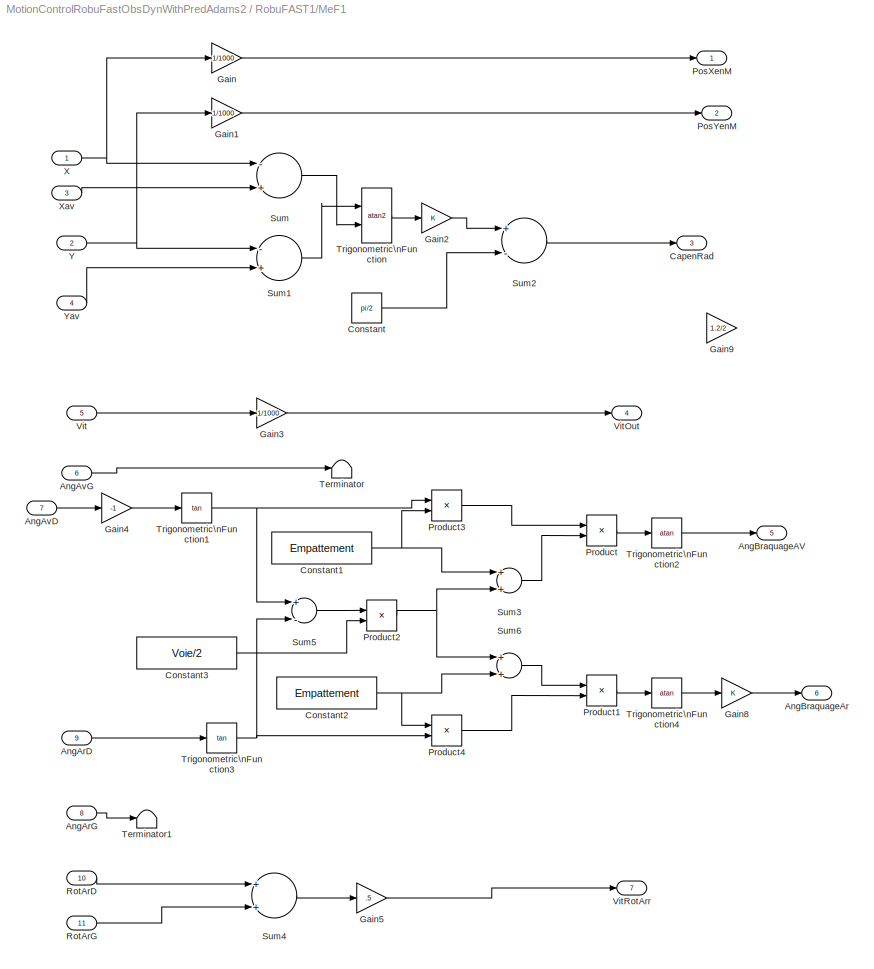
BLOCK [SubSystem] RobuFAST1/MeF1
  FunctionWithSeparateData = off
  MaskHideContents = off
  MinAlgLoopOccurrences = off
  Opaque = off
  Ports = [11, 7]
  PropExecContextOutsideSubsystem = off
  RTWSystemCode = Auto
  RequestExecContextInheritance = off
BLOCK [Inport] RobuFAST1/MeF1/AngArD
  IconDisplay = Port number
  OutDataType = sfix(16)
  OutScaling = 2^0
  Port = 9
BLOCK [Inport] RobuFAST1/MeF1/AngArG
  IconDisplay = Port number
  OutDataType = sfix(16)
  OutScaling = 2^0
  Port = 8
BLOCK [Inport] RobuFAST1/MeF1/AngAvD
  IconDisplay = Port number
  OutDataType = sfix(16)
  OutScaling = 2^0
  Port = 7
BLOCK [Inport] RobuFAST1/MeF1/AngAvG
  IconDisplay = Port number
  OutDataType = sfix(16)
  OutScaling = 2^0
  Port = 6
BLOCK [Outport] RobuFAST1/MeF1/AngBraquageAV
  IconDisplay = Port number
  OutDataType = sfix(16)
  OutScaling = 2^0
  Port = 5
BLOCK [Outport] RobuFAST1/MeF1/AngBraquageAr
  IconDisplay = Port number
  OutDataType = sfix(16)
  OutScaling = 2^0
  Port = 6
BLOCK [Outport] RobuFAST1/MeF1/CapenRad
  IconDisplay = Port number
  OutDataType = sfix(16)
  OutScaling = 2^0
  Port = 3
BLOCK [Constant] RobuFAST1/MeF1/Constant
  OutDataType = sfix(16)
  OutScaling = 2^0
  Value = pi/2
BLOCK [Constant] RobuFAST1/MeF1/Constant1
  OutDataType = sfix(16)
  OutScaling = 2^0
  Value = Empattement
BLOCK [Constant] RobuFAST1/MeF1/Constant2
  OutDataType = sfix(16)
  OutScaling = 2^0
  Value = Empattement
BLOCK [Constant] RobuFAST1/MeF1/Constant3
  OutDataType = sfix(16)
  OutScaling = 2^0
  Value = Voie/2
BLOCK [Gain] RobuFAST1/MeF1/Gain
  Gain = 1/1000
  OutDataType = sfix(16)
  OutDataTypeMode = Inherit via internal rule
  OutDataTypeStr = Inherit: Inherit via internal rule
  OutScaling = 2^0
  ParamDataTypeStr = Inherit: Inherit via internal rule
  ParameterDataType = sfix(16)
  ParameterDataTypeMode = Inherit via internal rule
  ParameterScaling = 2^0
  SaturateOnIntegerOverflow = off
BLOCK [Gain] RobuFAST1/MeF1/Gain1
  Gain = 1/1000
  OutDataType = sfix(16)
  OutDataTypeMode = Inherit via internal rule
  OutDataTypeStr = Inherit: Inherit via internal rule
  OutScaling = 2^0
  ParamDataTypeStr = Inherit: Inherit via internal rule
  ParameterDataType = sfix(16)
  ParameterDataTypeMode = Inherit via internal rule
  ParameterScaling = 2^0
  SaturateOnIntegerOverflow = off
BLOCK [Gain] RobuFAST1/MeF1/Gain2
  OutDataType = sfix(16)
  OutDataTypeMode = Inherit via internal rule
  OutDataTypeStr = Inherit: Inherit via internal rule
  OutScaling = 2^0
  ParamDataTypeStr = Inherit: Inherit via internal rule
  ParameterDataType = sfix(16)
  ParameterDataTypeMode = Inherit via internal rule
  ParameterScaling = 2^0
  SaturateOnIntegerOverflow = off
BLOCK [Gain] RobuFAST1/MeF1/Gain3
  Gain = 1/1000
  OutDataType = sfix(16)
  OutDataTypeMode = Inherit via internal rule
  OutDataTypeStr = Inherit: Inherit via internal rule
  OutScaling = 2^0
  ParamDataTypeStr = Inherit: Inherit via internal rule
  ParameterDataType = sfix(16)
  ParameterDataTypeMode = Inherit via internal rule
  ParameterScaling = 2^0
  SaturateOnIntegerOverflow = off
BLOCK [Gain] RobuFAST1/MeF1/Gain4
  Gain = -1
  OutDataType = sfix(16)
  OutDataTypeMode = Inherit via internal rule
  OutDataTypeStr = Inherit: Inherit via internal rule
  OutScaling = 2^0
  ParamDataTypeStr = Inherit: Inherit via internal rule
  ParameterDataType = sfix(16)
  ParameterDataTypeMode = Inherit via internal rule
  ParameterScaling = 2^0
  SaturateOnIntegerOverflow = off
BLOCK [Gain] RobuFAST1/MeF1/Gain5
  Gain = .5
  OutDataType = sfix(16)
  OutDataTypeMode = Inherit via internal rule
  OutDataTypeStr = Inherit: Inherit via internal rule
  OutScaling = 2^0
  ParamDataTypeStr = Inherit: Inherit via internal rule
  ParameterDataType = sfix(16)
  ParameterDataTypeMode = Inherit via internal rule
  ParameterScaling = 2^0
  SaturateOnIntegerOverflow = off
BLOCK [Gain] RobuFAST1/MeF1/Gain8
  OutDataType = sfix(16)
  OutDataTypeMode = Inherit via internal rule
  OutDataTypeStr = Inherit: Inherit via internal rule
  OutScaling = 2^0
  ParamDataTypeStr = Inherit: Inherit via internal rule
  ParameterDataType = sfix(16)
  ParameterDataTypeMode = Inherit via internal rule
  ParameterScaling = 2^0
  SaturateOnIntegerOverflow = off
BLOCK [Gain] RobuFAST1/MeF1/Gain9
  Gain = 1.2/2
  OutDataType = sfix(16)
  OutDataTypeMode = Inherit via internal rule
  OutDataTypeStr = Inherit: Inherit via internal rule
  OutScaling = 2^0
  ParamDataTypeStr = Inherit: Inherit via internal rule
  ParameterDataType = sfix(16)
  ParameterDataTypeMode = Inherit via internal rule
  ParameterScaling = 2^0
  SaturateOnIntegerOverflow = off
BLOCK [Outport] RobuFAST1/MeF1/PosXenM
  IconDisplay = Port number
  OutDataType = sfix(16)
  OutScaling = 2^0
BLOCK [Outport] RobuFAST1/MeF1/PosYenM
  IconDisplay = Port number
  OutDataType = sfix(16)
  OutScaling = 2^0
  Port = 2
BLOCK [Product] RobuFAST1/MeF1/Product
  InputSameDT = off
  Inputs = */
  OutDataType = sfix(16)
  OutDataTypeMode = Inherit via internal rule
  OutDataTypeStr = Inherit: Inherit via internal rule
  OutScaling = 2^0
  Ports = [2, 1]
  SaturateOnIntegerOverflow = off
BLOCK [Product] RobuFAST1/MeF1/Product1
  InputSameDT = off
  Inputs = /*
  OutDataType = sfix(16)
  OutDataTypeMode = Inherit via internal rule
  OutDataTypeStr = Inherit: Inherit via internal rule
  OutScaling = 2^0
  Ports = [2, 1]
  SaturateOnIntegerOverflow = off
BLOCK [Product] RobuFAST1/MeF1/Product2
  InputSameDT = off
  Inputs = **
  OutDataType = sfix(16)
  OutDataTypeMode = Inherit via internal rule
  OutDataTypeStr = Inherit: Inherit via internal rule
  OutScaling = 2^0
  Ports = [2, 1]
  SaturateOnIntegerOverflow = off
BLOCK [Product] RobuFAST1/MeF1/Product3
  InputSameDT = off
  Inputs = **
  OutDataType = sfix(16)
  OutDataTypeMode = Inherit via internal rule
  OutDataTypeStr = Inherit: Inherit via internal rule
  OutScaling = 2^0
  Ports = [2, 1]
  SaturateOnIntegerOverflow = off
BLOCK [Product] RobuFAST1/MeF1/Product4
  InputSameDT = off
  Inputs = **
  OutDataType = sfix(16)
  OutDataTypeMode = Inherit via internal rule
  OutDataTypeStr = Inherit: Inherit via internal rule
  OutScaling = 2^0
  Ports = [2, 1]
  SaturateOnIntegerOverflow = off
BLOCK [Inport] RobuFAST1/MeF1/RotArD
  IconDisplay = Port number
  OutDataType = sfix(16)
  OutScaling = 2^0
  Port = 10
BLOCK [Inport] RobuFAST1/MeF1/RotArG
  IconDisplay = Port number
  OutDataType = sfix(16)
  OutScaling = 2^0
  Port = 11
BLOCK [Sum] RobuFAST1/MeF1/Sum
  InputSameDT = off
  Inputs = -+
  OutDataType = sfix(16)
  OutDataTypeMode = Inherit via internal rule
  OutDataTypeStr = Inherit: Inherit via internal rule
  OutScaling = 2^0
  Ports = [2, 1]
  SaturateOnIntegerOverflow = off
BLOCK [Sum] RobuFAST1/MeF1/Sum1
  InputSameDT = off
  Inputs = -+
  OutDataType = sfix(16)
  OutDataTypeMode = Inherit via internal rule
  OutDataTypeStr = Inherit: Inherit via internal rule
  OutScaling = 2^0
  Ports = [2, 1]
  SaturateOnIntegerOverflow = off
BLOCK [Sum] RobuFAST1/MeF1/Sum2
  InputSameDT = off
  Inputs = +-
  OutDataType = sfix(16)
  OutDataTypeMode = Inherit via internal rule
  OutDataTypeStr = Inherit: Inherit via internal rule
  OutScaling = 2^0
  Ports = [2, 1]
  SaturateOnIntegerOverflow = off
BLOCK [Sum] RobuFAST1/MeF1/Sum3
  InputSameDT = off
  OutDataType = sfix(16)
  OutDataTypeMode = Inherit via internal rule
  OutDataTypeStr = Inherit: Inherit via internal rule
  OutScaling = 2^0
  Ports = [2, 1]
  SaturateOnIntegerOverflow = off
BLOCK [Sum] RobuFAST1/MeF1/Sum4
  InputSameDT = off
  OutDataType = sfix(16)
  OutDataTypeMode = Inherit via internal rule
  OutDataTypeStr = Inherit: Inherit via internal rule
  OutScaling = 2^0
  Ports = [2, 1]
  SaturateOnIntegerOverflow = off
BLOCK [Sum] RobuFAST1/MeF1/Sum5
  InputSameDT = off
  Inputs = +-
  OutDataType = sfix(16)
  OutDataTypeMode = Inherit via internal rule
  OutDataTypeStr = Inherit: Inherit via internal rule
  OutScaling = 2^0
  Ports = [2, 1]
  SaturateOnIntegerOverflow = off
BLOCK [Sum] RobuFAST1/MeF1/Sum6
  InputSameDT = off
  OutDataType = sfix(16)
  OutDataTypeMode = Inherit via internal rule
  OutDataTypeStr = Inherit: Inherit via internal rule
  OutScaling = 2^0
  Ports = [2, 1]
  SaturateOnIntegerOverflow = off
BLOCK [Terminator] RobuFAST1/MeF1/Terminator
BLOCK [Terminator] RobuFAST1/MeF1/Terminator1
BLOCK [Trigonometry] RobuFAST1/MeF1/Trigonometric\nFunction
  Operator = atan2
  Ports = [2, 1]
BLOCK [Trigonometry] RobuFAST1/MeF1/Trigonometric\nFunction1
  Operator = tan
  Ports = [1, 1]
BLOCK [Trigonometry] RobuFAST1/MeF1/Trigonometric\nFunction2
  Operator = atan
  Ports = [1, 1]
BLOCK [Trigonometry] RobuFAST1/MeF1/Trigonometric\nFunction3
  Operator = tan
  Ports = [1, 1]
BLOCK [Trigonometry] RobuFAST1/MeF1/Trigonometric\nFunction4
  Operator = atan
  Ports = [1, 1]
BLOCK [Inport] RobuFAST1/MeF1/Vit
  IconDisplay = Port number
  OutDataType = sfix(16)
  OutScaling = 2^0
  Port = 5
BLOCK [Outport] RobuFAST1/MeF1/VitOut
  IconDisplay = Port number
  OutDataType = sfix(16)
  OutScaling = 2^0
  Port = 4
BLOCK [Outport] RobuFAST1/MeF1/VitRotArr
  IconDisplay = Port number
  OutDataType = sfix(16)
  OutScaling = 2^0
  Port = 7
BLOCK [Inport] RobuFAST1/MeF1/X
  IconDisplay = Port number
  OutDataType = sfix(16)
  OutScaling = 2^0
BLOCK [Inport] RobuFAST1/MeF1/Xav
  IconDisplay = Port number
  OutDataType = sfix(16)
  OutScaling = 2^0
  Port = 3
BLOCK [Inport] RobuFAST1/MeF1/Y
  IconDisplay = Port number
  OutDataType = sfix(16)
  OutScaling = 2^0
  Port = 2
BLOCK [Inport] RobuFAST1/MeF1/Yav
  IconDisplay = Port number
  OutDataType = sfix(16)
  OutScaling = 2^0
  Port = 4
BLOCK [Mux] RobuFAST1/Mux
  DisplayOption = bar
  Inputs = 2
  Ports = [2, 1]
BLOCK [Outport] RobuFAST1/PosX(m)
  IconDisplay = Port number
  OutDataType = sfix(16)
  OutScaling = 2^0
BLOCK [Outport] RobuFAST1/PosY(m)
  IconDisplay = Port number
  OutDataType = sfix(16)
  OutScaling = 2^0
  Port = 2
BLOCK [Scope] RobuFAST1/Scope
  DataFormat = StructureWithTime
  Floating = off
  NumInputPorts = 1
  Ports = [1]
  SampleTime = 0
  TimeRange = 16
  YMax = 2
  YMin = -10
  ZoomMode = yonly
BLOCK [Outport] RobuFAST1/VitLacet
  IconDisplay = Port number
  OutDataType = sfix(16)
  OutScaling = 2^0
  Port = 7
BLOCK [Outport] RobuFAST1/VitRot
  IconDisplay = Port number
  OutDataType = sfix(16)
  OutScaling = 2^0
  Port = 8
BLOCK [Outport] RobuFAST1/Vitesse(m//s)
  IconDisplay = Port number
  OutDataType = sfix(16)
  OutScaling = 2^0
  Port = 4
BLOCK [SubSystem] RobuFAST1/adams_sub
  FunctionWithSeparateData = off
  MaskHideContents = off
  MinAlgLoopOccurrences = off
  Opaque = off
  Ports = [4, 13]
  PropExecContextOutsideSubsystem = off
  RTWSystemCode = Auto
  RequestExecContextInheritance = off
  ShowPortLabels = none
BLOCK [SubSystem] RobuFAST1/adams_sub/ADAMS Plant
  FunctionWithSeparateData = off
  MaskCallbackString = |||||||||||||||||
  MaskDescription = Simulate any Adams plant model either in Adams/Solver form (.adm file) or in Adams/View form (.cmd file)
  MaskDisplay = disp( 'MSCSoftware' )
  MaskEnableString = on,on,on,on,on,on,on,on,on,on,on,on,on,on,on,on,on,on
  MaskHideContents = off
  MaskIconFrame = on
  MaskIconOpaque = on
  MaskIconRotate = none
  MaskIconUnits = autoscale
  MaskPromptString = Adams install directory|Adams working directory|Interprocess Option|Adams host|Adams solver type|User executable (opt.: if blank - use standard)|Adams model file prefix|Adams/View input names|Adams/View output names|Output files prefix (opt.: if blank - no output)|Communication Interval|Number of communications per output step|Interpolation Order|Direct Feedthrough |Simulation     mode|Animation  ...<+63ch>
  MaskStyleString = edit,edit,popup(PIPE(DDE)|TCP/IP),edit,popup(Fortran|C++),edit,edit,edit,edit,edit,edit,edit,edit,popup(no|yes),popup(discrete|continuous),popup(batch|interactive),edit,edit
  MaskTabNameString = ,,,,,,,,,,,,,,,,,
  MaskToolTipString = on,on,on,on,on,on,on,on,on,on,on,on,on,on,on,on,on,on
  MaskTunableValueString = on,on,on,on,on,on,on,on,on,on,on,on,on,on,on,on,on,on
  MaskType = Adams Plant
  MaskValueString = ADAMS_sysdir|ADAMS_cwd|PIPE(DDE)|ADAMS_host|C++|ADAMS_exec|ADAMS_prefix|ADAMS_inputs|ADAMS_outputs|ADAMS_prefix|0.01|1|0|no|discrete|interactive|ADAMS_static|[ADAMS_init]
  MaskVarAliasString = ,,,,,,,,,,,,,,,,,
  MaskVariables = exevie=@1;workdir=@2;comtyp=&3;ada_host=@4;exetyp=&5;exesol=@6;nampre=@7;nam_in=@8;namout=@9;outfil=@10;dt_out=@11;o_rate=@12;interorder=@13;dft=&14;modsim=&15;modani=&16;stat=@17;inicmd=@18;
  MaskVisibilityString = on,on,on,on,on,on,on,on,on,on,on,on,on,on,on,on,on,on
  MinAlgLoopOccurrences = off
  Opaque = off
  Ports = [1, 1]
  PropExecContextOutsideSubsystem = off
  RTWSystemCode = Auto
  RequestExecContextInheritance = off
BLOCK [Inport] RobuFAST1/adams_sub/ADAMS Plant/ADAMS inputs
  IconDisplay = Port number
BLOCK [Outport] RobuFAST1/adams_sub/ADAMS Plant/ADAMS outputs
  IconDisplay = Port number
  InitialOutput = 0
BLOCK [S-Function] RobuFAST1/adams_sub/ADAMS Plant/S-Function
  EnableBusSupport = off
  FunctionName = adams_plant
  Parameters = exevie,exesol,stat,outfil,nampre,o_rate,nam_in,namout,dft,modsim,modani,dt_out,inicmd,exetyp,comtyp,ada_host, workdir,interorder
  Ports = [1, 1]
BLOCK [Inport] RobuFAST1/adams_sub/AccelMoteur         
  IconDisplay = Port number
  Port = 3
BLOCK [Outport] RobuFAST1/adams_sub/AngleARD      
  IconDisplay = Port number
  Port = 9
BLOCK [Outport] RobuFAST1/adams_sub/AngleARG      
  IconDisplay = Port number
  Port = 8
BLOCK [Outport] RobuFAST1/adams_sub/AngleAVD      
  IconDisplay = Port number
  Port = 7
BLOCK [Outport] RobuFAST1/adams_sub/AngleAVG      
  IconDisplay = Port number
  Port = 6
BLOCK [Inport] RobuFAST1/adams_sub/AngleBraquageAV     
  IconDisplay = Port number
BLOCK [Inport] RobuFAST1/adams_sub/AngleBraquageArriere
  IconDisplay = Port number
  Port = 2
BLOCK [Clock] RobuFAST1/adams_sub/Clock
  Decimation = 10
BLOCK [Demux] RobuFAST1/adams_sub/Demux
  Outputs = 13
  Ports = [1, 13]
BLOCK [Outport] RobuFAST1/adams_sub/MesureVitesse 
  IconDisplay = Port number
  Port = 5
BLOCK [Mux] RobuFAST1/adams_sub/Mux
  Ports = [4, 1]
BLOCK [Outport] RobuFAST1/adams_sub/PosX          
  IconDisplay = Port number
BLOCK [Outport] RobuFAST1/adams_sub/PosXAvant     
  IconDisplay = Port number
  Port = 3
BLOCK [Outport] RobuFAST1/adams_sub/PosY          
  IconDisplay = Port number
  Port = 2
BLOCK [Outport] RobuFAST1/adams_sub/PosYAvant     
  IconDisplay = Port number
  Port = 4
BLOCK [Inport] RobuFAST1/adams_sub/Stab_function       
  IconDisplay = Port number
  Port = 4
BLOCK [ToWorkspace] RobuFAST1/adams_sub/T To Workspace
  MaxDataPoints = 100000
  SaveFormat = Array
  VariableName = ADAMS_tout
BLOCK [ToWorkspace] RobuFAST1/adams_sub/U To Workspace
  MaxDataPoints = 100000
  SaveFormat = Array
  VariableName = ADAMS_uout
BLOCK [Outport] RobuFAST1/adams_sub/VitesseLacet  
  IconDisplay = Port number
  Port = 12
BLOCK [Outport] RobuFAST1/adams_sub/VitesseRoueARD
  IconDisplay = Port number
  Port = 10
BLOCK [Outport] RobuFAST1/adams_sub/VitesseRoueARG
  IconDisplay = Port number
  Port = 11
BLOCK [ToWorkspace] RobuFAST1/adams_sub/Y To Workspace
  MaxDataPoints = 100000
  SaveFormat = Array
  VariableName = ADAMS_yout
BLOCK [Outport] RobuFAST1/adams_sub/roulis        
  IconDisplay = Port number
  Port = 13
BLOCK [Scope] Scope
  DataFormat = StructureWithTime
  Floating = off
  LimitDataPoints = off
  NumInputPorts = 1
  Ports = [1]
  SampleTime = 0
  SaveName = Elat
  SaveToWorkspace = on
  TimeRange = 25
  YMax = 0.7
  YMin = -0.15
  ZoomMode = yonly
BLOCK [Scope] Scope1
  DataFormat = StructureWithTime
  Floating = off
  LimitDataPoints = off
  NumInputPorts = 1
  Ports = [1]
  SampleTime = 0
  SaveName = Elat1
  SaveToWorkspace = on
  TimeRange = 15
  YMax = 1
  YMin = -1
  ZoomMode = yonly
BLOCK [Scope] Scope2
  DataFormat = StructureWithTime
  Floating = off
  LimitDataPoints = off
  NumInputPorts = 1
  Ports = [1]
  SampleTime = 0
  SaveName = Elat3
  SaveToWorkspace = on
  TimeRange = 15
  YMax = 0.7315
  YMin = 0.7245
BLOCK [Constant] TempsPred
  OutDataType = sfix(16)
  OutScaling = 2^0
  Value = 0.7
BLOCK [ToWorkspace] To Workspace
  MaxDataPoints = inf
  SampleTime = -1
  SaveFormat = Array
  VariableName = Resultat
BLOCK [ToWorkspace] To Workspace1
  MaxDataPoints = inf
  SampleTime = -1
  SaveFormat = Array
  VariableName = Traj
LINE CalculH/CalculHorizonPred:1 -> CalculH/Out1:1
LINE CalculH/Entrees:1 -> CalculH/CalculHorizonPred:1
NET CalculH:1 -> Manual Switch:2, Scope2:1
LINE CommAvance/Consigne:1 -> CommAvance/miseEnForme\nCondigne vitesse:1
LINE CommAvance/Gain:1 -> CommAvance/AccelRot:1
LINE CommAvance/miseEnForme\nCondigne vitesse/Braquage2:1 -> CommAvance/miseEnForme\nCondigne vitesse/Switch:3
LINE CommAvance/miseEnForme\nCondigne vitesse/Clock:1 -> CommAvance/miseEnForme\nCondigne vitesse/Switch:2
LINE CommAvance/miseEnForme\nCondigne vitesse/In1:1 -> CommAvance/miseEnForme\nCondigne vitesse/Switch:1
LINE CommAvance/miseEnForme\nCondigne vitesse/Switch:1 -> CommAvance/miseEnForme\nCondigne vitesse/T=0.75:1
LINE CommAvance/miseEnForme\nCondigne vitesse/T=0.75:1 -> CommAvance/miseEnForme\nCondigne vitesse/Out2:1
LINE CommAvance/miseEnForme\nCondigne vitesse:1 -> CommAvance/Gain:1
LINE CommAvance:1 -> Memory1:1
LINE CommandeAvGlissement1/BraqARMes:1 -> CommandeAvGlissement1/Gain4:1
NET CommandeAvGlissement1/BraqMes:1 -> CommandeAvGlissement1/ExtractionRigid1:5, CommandeAvGlissement1/ExtractionRigid:4, CommandeAvGlissement1/Mux:13, CommandeAvGlissement1/ObservationDerive2:5
LINE CommandeAvGlissement1/CapDeriv:1 -> CommandeAvGlissement1/Gain5:1
LINE CommandeAvGlissement1/CommandeAvGlissement/BetaF:1 -> CommandeAvGlissement1/CommandeAvGlissement/Mux:6
LINE CommandeAvGlissement1/CommandeAvGlissement/BetaR:1 -> CommandeAvGlissement1/CommandeAvGlissement/Mux:5
LINE CommandeAvGlissement1/CommandeAvGlissement/BraqArr:1 -> CommandeAvGlissement1/CommandeAvGlissement/Mux:12
LINE CommandeAvGlissement1/CommandeAvGlissement/Braquage3:1 -> CommandeAvGlissement1/CommandeAvGlissement/Demux:1
LINE CommandeAvGlissement1/CommandeAvGlissement/Courbure:1 -> CommandeAvGlissement1/CommandeAvGlissement/Mux:3
LINE CommandeAvGlissement1/CommandeAvGlissement/CourbureH:1 -> CommandeAvGlissement1/CommandeAvGlissement/Mux:11
NET CommandeAvGlissement1/CommandeAvGlissement/Demux:1 -> CommandeAvGlissement1/CommandeAvGlissement/Gain1:1, CommandeAvGlissement1/CommandeAvGlissement/Memory1:1
LINE CommandeAvGlissement1/CommandeAvGlissement/Demux:2 -> CommandeAvGlissement1/CommandeAvGlissement/Memory3:1
LINE CommandeAvGlissement1/CommandeAvGlissement/EcAng:1 -> CommandeAvGlissement1/CommandeAvGlissement/Mux:2
LINE CommandeAvGlissement1/CommandeAvGlissement/EcLat:1 -> CommandeAvGlissement1/CommandeAvGlissement/Mux:1
LINE CommandeAvGlissement1/CommandeAvGlissement/Gain1:1 -> CommandeAvGlissement1/CommandeAvGlissement/Delta:1
NET CommandeAvGlissement1/CommandeAvGlissement/Memory1:1 -> CommandeAvGlissement1/CommandeAvGlissement/Memory2:1, CommandeAvGlissement1/CommandeAvGlissement/Mux:7
LINE CommandeAvGlissement1/CommandeAvGlissement/Memory2:1 -> CommandeAvGlissement1/CommandeAvGlissement/Mux:8
NET CommandeAvGlissement1/CommandeAvGlissement/Memory3:1 -> CommandeAvGlissement1/CommandeAvGlissement/Memory4:1, CommandeAvGlissement1/CommandeAvGlissement/Mux:10
LINE CommandeAvGlissement1/CommandeAvGlissement/Memory4:1 -> CommandeAvGlissement1/CommandeAvGlissement/Mux:14
LINE CommandeAvGlissement1/CommandeAvGlissement/Mux:1 -> CommandeAvGlissement1/CommandeAvGlissement/Braquage3:1
LINE CommandeAvGlissement1/CommandeAvGlissement/Tpred:1 -> CommandeAvGlissement1/CommandeAvGlissement/Mux:9
LINE CommandeAvGlissement1/CommandeAvGlissement/Vitesse:1 -> CommandeAvGlissement1/CommandeAvGlissement/Mux:13
LINE CommandeAvGlissement1/CommandeAvGlissement/dCourbure:1 -> CommandeAvGlissement1/CommandeAvGlissement/Mux:4
LINE CommandeAvGlissement1/CommandeAvGlissement:1 -> CommandeAvGlissement1/Delta:1
LINE CommandeAvGlissement1/CommandeTrainArr/BetaF:1 -> CommandeAvGlissement1/CommandeTrainArr/Mux:5
LINE CommandeAvGlissement1/CommandeTrainArr/BetaR:1 -> CommandeAvGlissement1/CommandeTrainArr/Mux:4
LINE CommandeAvGlissement1/CommandeTrainArr/Braquage2train2Arr:1 -> CommandeAvGlissement1/CommandeTrainArr/Gain1:1
LINE CommandeAvGlissement1/CommandeTrainArr/Courbure:1 -> CommandeAvGlissement1/CommandeTrainArr/Mux:3
LINE CommandeAvGlissement1/CommandeTrainArr/EcAng:1 -> CommandeAvGlissement1/CommandeTrainArr/Mux:2
LINE CommandeAvGlissement1/CommandeTrainArr/EcAngRef:1 -> CommandeAvGlissement1/CommandeTrainArr/Gain2:1
LINE CommandeAvGlissement1/CommandeTrainArr/EcLat:1 -> CommandeAvGlissement1/CommandeTrainArr/Mux:1
LINE CommandeAvGlissement1/CommandeTrainArr/Gain1:1 -> CommandeAvGlissement1/CommandeTrainArr/DeltaArr:1
LINE CommandeAvGlissement1/CommandeTrainArr/Gain2:1 -> CommandeAvGlissement1/CommandeTrainArr/Mux:6
LINE CommandeAvGlissement1/CommandeTrainArr/Mux:1 -> CommandeAvGlissement1/CommandeTrainArr/Braquage2train2Arr:1
LINE CommandeAvGlissement1/CommandeTrainArr:1 -> CommandeAvGlissement1/DeltaArr:1
LINE CommandeAvGlissement1/Constant1:1 -> CommandeAvGlissement1/CommandeTrainArr:1
LINE CommandeAvGlissement1/Constant2:1 -> CommandeAvGlissement1/Mux1:2
LINE CommandeAvGlissement1/Constant3:1 -> CommandeAvGlissement1/Mux1:1
LINE CommandeAvGlissement1/Constant:1 -> CommandeAvGlissement1/CommandeAvGlissement:6
NET CommandeAvGlissement1/Courbure:1 -> CommandeAvGlissement1/CommandeAvGlissement:5, CommandeAvGlissement1/CommandeTrainArr:4, CommandeAvGlissement1/ObservationDerive2:3
LINE CommandeAvGlissement1/CourbureH:1 -> CommandeAvGlissement1/CommandeAvGlissement:10
LINE CommandeAvGlissement1/Demux1:1 -> CommandeAvGlissement1/Discrete Filter1:1
LINE CommandeAvGlissement1/Demux1:2 -> CommandeAvGlissement1/Discrete Filter7:1
LINE CommandeAvGlissement1/Demux:1 -> CommandeAvGlissement1/CommandeAvGlissement:7
LINE CommandeAvGlissement1/Demux:2 -> CommandeAvGlissement1/CommandeAvGlissement:8
LINE CommandeAvGlissement1/Discrete Filter1:1 -> CommandeAvGlissement1/CommandeTrainArr:5
LINE CommandeAvGlissement1/Discrete Filter7:1 -> CommandeAvGlissement1/CommandeTrainArr:6
LINE CommandeAvGlissement1/EcAngDeriv:1 -> CommandeAvGlissement1/ObservationDerive2:7
NET CommandeAvGlissement1/Ecap:1 -> CommandeAvGlissement1/CommandeAvGlissement:4, CommandeAvGlissement1/CommandeTrainArr:3, CommandeAvGlissement1/ObservationDerive2:2
NET CommandeAvGlissement1/Elat:1 -> CommandeAvGlissement1/CommandeAvGlissement:3, CommandeAvGlissement1/CommandeTrainArr:2, CommandeAvGlissement1/ObservationDerive2:1
LINE CommandeAvGlissement1/EstMethod:1 -> CommandeAvGlissement1/Sliding?:2
NET CommandeAvGlissement1/ExtractionRigid/BetaF:1 -> CommandeAvGlissement1/ExtractionRigid/Discrete Filter9:1, CommandeAvGlissement1/ExtractionRigid/Gain6:1
LINE CommandeAvGlissement1/ExtractionRigid/BetaObj1:1 -> CommandeAvGlissement1/ExtractionRigid/Gain3:1
NET CommandeAvGlissement1/ExtractionRigid/BetaR:1 -> CommandeAvGlissement1/ExtractionRigid/Discrete Filter12:1, CommandeAvGlissement1/ExtractionRigid/Mux:6
LINE CommandeAvGlissement1/ExtractionRigid/Demux1:1 -> CommandeAvGlissement1/ExtractionRigid/Memory4:1
LINE CommandeAvGlissement1/ExtractionRigid/Demux1:2 -> CommandeAvGlissement1/ExtractionRigid/Memory5:1
NET CommandeAvGlissement1/ExtractionRigid/Demux1:3 -> CommandeAvGlissement1/ExtractionRigid/Memory1:1, CommandeAvGlissement1/ExtractionRigid/VerPsip:1
NET CommandeAvGlissement1/ExtractionRigid/Demux1:4 -> CommandeAvGlissement1/ExtractionRigid/Memory2:1, CommandeAvGlissement1/ExtractionRigid/VerBeta:1
LINE CommandeAvGlissement1/ExtractionRigid/Demux1:5 -> CommandeAvGlissement1/ExtractionRigid/Gain1:1
LINE CommandeAvGlissement1/ExtractionRigid/Demux1:6 -> CommandeAvGlissement1/ExtractionRigid/Fav:1
LINE CommandeAvGlissement1/ExtractionRigid/Demux1:7 -> CommandeAvGlissement1/ExtractionRigid/Far:1
LINE CommandeAvGlissement1/ExtractionRigid/Demux1:8 -> CommandeAvGlissement1/ExtractionRigid/Memory3:1
LINE CommandeAvGlissement1/ExtractionRigid/Demux1:9 -> CommandeAvGlissement1/ExtractionRigid/Memory6:1
NET CommandeAvGlissement1/ExtractionRigid/Discrete Filter12:1 -> CommandeAvGlissement1/ExtractionRigid/BetaR1:1, CommandeAvGlissement1/ExtractionRigid/Mux:16
NET CommandeAvGlissement1/ExtractionRigid/Discrete Filter9:1 -> CommandeAvGlissement1/ExtractionRigid/BetaF1:1, CommandeAvGlissement1/ExtractionRigid/Gain4:1
LINE CommandeAvGlissement1/ExtractionRigid/From:1 -> CommandeAvGlissement1/ExtractionRigid/Mux:12
LINE CommandeAvGlissement1/ExtractionRigid/Gain1:1 -> CommandeAvGlissement1/ExtractionRigid/Scope:1
LINE CommandeAvGlissement1/ExtractionRigid/Gain2:1 -> CommandeAvGlissement1/ExtractionRigid/Scope1:1
LINE CommandeAvGlissement1/ExtractionRigid/Gain3:1 -> CommandeAvGlissement1/ExtractionRigid/Mux:4
LINE CommandeAvGlissement1/ExtractionRigid/Gain4:1 -> CommandeAvGlissement1/ExtractionRigid/Mux:15
LINE CommandeAvGlissement1/ExtractionRigid/Gain6:1 -> CommandeAvGlissement1/ExtractionRigid/Mux:5
LINE CommandeAvGlissement1/ExtractionRigid/Memory1:1 -> CommandeAvGlissement1/ExtractionRigid/Mux:9
LINE CommandeAvGlissement1/ExtractionRigid/Memory2:1 -> CommandeAvGlissement1/ExtractionRigid/Mux:10
LINE CommandeAvGlissement1/ExtractionRigid/Memory3:1 -> CommandeAvGlissement1/ExtractionRigid/Mux:13
NET CommandeAvGlissement1/ExtractionRigid/Memory4:1 -> CommandeAvGlissement1/ExtractionRigid/CF:1, CommandeAvGlissement1/ExtractionRigid/Mux:7
NET CommandeAvGlissement1/ExtractionRigid/Memory5:1 -> CommandeAvGlissement1/ExtractionRigid/CR:1, CommandeAvGlissement1/ExtractionRigid/Mux:8
LINE CommandeAvGlissement1/ExtractionRigid/Memory6:1 -> CommandeAvGlissement1/ExtractionRigid/Mux:14
LINE CommandeAvGlissement1/ExtractionRigid/Mux:1 -> CommandeAvGlissement1/ExtractionRigid/ObsCFCR:1
LINE CommandeAvGlissement1/ExtractionRigid/ObsCFCR:1 -> CommandeAvGlissement1/ExtractionRigid/Demux1:1
LINE CommandeAvGlissement1/ExtractionRigid/Subsystem/In1:1 -> CommandeAvGlissement1/ExtractionRigid/Subsystem/Memory7:1
LINE CommandeAvGlissement1/ExtractionRigid/Subsystem/Memory10:1 -> CommandeAvGlissement1/ExtractionRigid/Subsystem/Memory11:1
LINE CommandeAvGlissement1/ExtractionRigid/Subsystem/Memory11:1 -> CommandeAvGlissement1/ExtractionRigid/Subsystem/Memory3:1
LINE CommandeAvGlissement1/ExtractionRigid/Subsystem/Memory1:1 -> CommandeAvGlissement1/ExtractionRigid/Subsystem/Memory2:1
LINE CommandeAvGlissement1/ExtractionRigid/Subsystem/Memory2:1 -> CommandeAvGlissement1/ExtractionRigid/Subsystem/Out1:1
LINE CommandeAvGlissement1/ExtractionRigid/Subsystem/Memory3:1 -> CommandeAvGlissement1/ExtractionRigid/Subsystem/Memory4:1
LINE CommandeAvGlissement1/ExtractionRigid/Subsystem/Memory4:1 -> CommandeAvGlissement1/ExtractionRigid/Subsystem/Memory5:1
LINE CommandeAvGlissement1/ExtractionRigid/Subsystem/Memory5:1 -> CommandeAvGlissement1/ExtractionRigid/Subsystem/Memory1:1
LINE CommandeAvGlissement1/ExtractionRigid/Subsystem/Memory7:1 -> CommandeAvGlissement1/ExtractionRigid/Subsystem/Memory8:1
LINE CommandeAvGlissement1/ExtractionRigid/Subsystem/Memory8:1 -> CommandeAvGlissement1/ExtractionRigid/Subsystem/Memory9:1
LINE CommandeAvGlissement1/ExtractionRigid/Subsystem/Memory9:1 -> CommandeAvGlissement1/ExtractionRigid/Subsystem/Memory10:1
LINE CommandeAvGlissement1/ExtractionRigid/Subsystem2/In1:1 -> CommandeAvGlissement1/ExtractionRigid/Subsystem2/Memory7:1
LINE CommandeAvGlissement1/ExtractionRigid/Subsystem2/Memory10:1 -> CommandeAvGlissement1/ExtractionRigid/Subsystem2/Memory11:1
LINE CommandeAvGlissement1/ExtractionRigid/Subsystem2/Memory11:1 -> CommandeAvGlissement1/ExtractionRigid/Subsystem2/Memory3:1
LINE CommandeAvGlissement1/ExtractionRigid/Subsystem2/Memory1:1 -> CommandeAvGlissement1/ExtractionRigid/Subsystem2/Memory2:1
LINE CommandeAvGlissement1/ExtractionRigid/Subsystem2/Memory2:1 -> CommandeAvGlissement1/ExtractionRigid/Subsystem2/Out1:1
LINE CommandeAvGlissement1/ExtractionRigid/Subsystem2/Memory3:1 -> CommandeAvGlissement1/ExtractionRigid/Subsystem2/Memory4:1
LINE CommandeAvGlissement1/ExtractionRigid/Subsystem2/Memory4:1 -> CommandeAvGlissement1/ExtractionRigid/Subsystem2/Memory5:1
LINE CommandeAvGlissement1/ExtractionRigid/Subsystem2/Memory5:1 -> CommandeAvGlissement1/ExtractionRigid/Subsystem2/Memory1:1
LINE CommandeAvGlissement1/ExtractionRigid/Subsystem2/Memory7:1 -> CommandeAvGlissement1/ExtractionRigid/Subsystem2/Memory8:1
LINE CommandeAvGlissement1/ExtractionRigid/Subsystem2/Memory8:1 -> CommandeAvGlissement1/ExtractionRigid/Subsystem2/Memory9:1
LINE CommandeAvGlissement1/ExtractionRigid/Subsystem2/Memory9:1 -> CommandeAvGlissement1/ExtractionRigid/Subsystem2/Memory10:1
LINE CommandeAvGlissement1/ExtractionRigid/Vitesse:1 -> CommandeAvGlissement1/ExtractionRigid/Mux:3
LINE CommandeAvGlissement1/ExtractionRigid/VitesseLacet:1 -> CommandeAvGlissement1/ExtractionRigid/Mux:1
LINE CommandeAvGlissement1/ExtractionRigid/deltaArr:1 -> CommandeAvGlissement1/ExtractionRigid/Mux:11
NET CommandeAvGlissement1/ExtractionRigid/deltaAvant:1 -> CommandeAvGlissement1/ExtractionRigid/Gain2:1, CommandeAvGlissement1/ExtractionRigid/Mux:2
LINE CommandeAvGlissement1/ExtractionRigid1/BetaObj:1 -> CommandeAvGlissement1/ExtractionRigid1/Mux:3
NET CommandeAvGlissement1/ExtractionRigid1/CF1:1 -> CommandeAvGlissement1/ExtractionRigid1/CFBrut:1, CommandeAvGlissement1/ExtractionRigid1/CFFilt:1, CommandeAvGlissement1/ExtractionRigid1/Mux:6
NET CommandeAvGlissement1/ExtractionRigid1/CR1:1 -> CommandeAvGlissement1/ExtractionRigid1/CRBrut:1, CommandeAvGlissement1/ExtractionRigid1/CRFilt:1, CommandeAvGlissement1/ExtractionRigid1/Mux:7
LINE CommandeAvGlissement1/ExtractionRigid1/Delta:1 -> CommandeAvGlissement1/ExtractionRigid1/Mux:8
LINE CommandeAvGlissement1/ExtractionRigid1/DeltaArr:1 -> CommandeAvGlissement1/ExtractionRigid1/Mux:9
NET CommandeAvGlissement1/ExtractionRigid1/Demux1:1 -> CommandeAvGlissement1/ExtractionRigid1/Memory1:1, CommandeAvGlissement1/ExtractionRigid1/VerLac:1
NET CommandeAvGlissement1/ExtractionRigid1/Demux1:2 -> CommandeAvGlissement1/ExtractionRigid1/Memory2:1, CommandeAvGlissement1/ExtractionRigid1/VerBet:1
LINE CommandeAvGlissement1/ExtractionRigid1/Demux1:3 -> CommandeAvGlissement1/ExtractionRigid1/GlissAvant:1
LINE CommandeAvGlissement1/ExtractionRigid1/Demux1:4 -> CommandeAvGlissement1/ExtractionRigid1/GlissArr:1
LINE CommandeAvGlissement1/ExtractionRigid1/From:1 -> CommandeAvGlissement1/ExtractionRigid1/Gain5:1
LINE CommandeAvGlissement1/ExtractionRigid1/Gain5:1 -> CommandeAvGlissement1/ExtractionRigid1/Mux:10
LINE CommandeAvGlissement1/ExtractionRigid1/Memory1:1 -> CommandeAvGlissement1/ExtractionRigid1/Mux:1
LINE CommandeAvGlissement1/ExtractionRigid1/Memory2:1 -> CommandeAvGlissement1/ExtractionRigid1/Mux:2
LINE CommandeAvGlissement1/ExtractionRigid1/Mux:1 -> CommandeAvGlissement1/ExtractionRigid1/Observateur Dyn:1
LINE CommandeAvGlissement1/ExtractionRigid1/Observateur Dyn:1 -> CommandeAvGlissement1/ExtractionRigid1/Demux1:1
LINE CommandeAvGlissement1/ExtractionRigid1/VitLacet:1 -> CommandeAvGlissement1/ExtractionRigid1/Mux:4
LINE CommandeAvGlissement1/ExtractionRigid1/Vitesse:1 -> CommandeAvGlissement1/ExtractionRigid1/Mux:5
LINE CommandeAvGlissement1/ExtractionRigid1:1 -> CommandeAvGlissement1/Mux3:1
LINE CommandeAvGlissement1/ExtractionRigid1:2 -> CommandeAvGlissement1/Mux3:2
LINE CommandeAvGlissement1/ExtractionRigid1:3 -> CommandeAvGlissement1/Mux:3
LINE CommandeAvGlissement1/ExtractionRigid1:4 -> CommandeAvGlissement1/Mux:4
NET CommandeAvGlissement1/ExtractionRigid1:5 -> CommandeAvGlissement1/Mux4:1, CommandeAvGlissement1/Mux:5
NET CommandeAvGlissement1/ExtractionRigid1:6 -> CommandeAvGlissement1/Mux4:2, CommandeAvGlissement1/Mux:6
LINE CommandeAvGlissement1/ExtractionRigid1:7 -> CommandeAvGlissement1/Mux:7
LINE CommandeAvGlissement1/ExtractionRigid1:8 -> CommandeAvGlissement1/Mux:8
LINE CommandeAvGlissement1/ExtractionRigid:1 -> CommandeAvGlissement1/Mux2:1
LINE CommandeAvGlissement1/ExtractionRigid:2 -> CommandeAvGlissement1/Mux2:2
LINE CommandeAvGlissement1/ExtractionRigid:3 -> CommandeAvGlissement1/ExtractionRigid1:1
LINE CommandeAvGlissement1/ExtractionRigid:4 -> CommandeAvGlissement1/ExtractionRigid1:2
LINE CommandeAvGlissement1/ExtractionRigid:5 -> CommandeAvGlissement1/Mux:9
LINE CommandeAvGlissement1/ExtractionRigid:6 -> CommandeAvGlissement1/Mux:10
LINE CommandeAvGlissement1/ExtractionRigid:7 -> CommandeAvGlissement1/Mux:14
LINE CommandeAvGlissement1/ExtractionRigid:8 -> CommandeAvGlissement1/Mux:15
NET CommandeAvGlissement1/Gain4:1 -> CommandeAvGlissement1/CommandeAvGlissement:1, CommandeAvGlissement1/ExtractionRigid1:7, CommandeAvGlissement1/ExtractionRigid:7, CommandeAvGlissement1/ObservationDerive2:6
NET CommandeAvGlissement1/Gain5:1 -> CommandeAvGlissement1/ExtractionRigid1:6, CommandeAvGlissement1/ExtractionRigid:6
LINE CommandeAvGlissement1/Mux1:1 -> CommandeAvGlissement1/Sliding?:1
NET CommandeAvGlissement1/Mux2:1 -> CommandeAvGlissement1/EstMethod:1, CommandeAvGlissement1/Mux:1
NET CommandeAvGlissement1/Mux3:1 -> CommandeAvGlissement1/EstMethod:2, CommandeAvGlissement1/Mux:2
LINE CommandeAvGlissement1/Mux4:1 -> CommandeAvGlissement1/CalculH:1
LINE CommandeAvGlissement1/Mux:1 -> CommandeAvGlissement1/Sortie2:1
LINE CommandeAvGlissement1/ObservationDerive2/AngleBraquage:1 -> CommandeAvGlissement1/ObservationDerive2/Mux:7
LINE CommandeAvGlissement1/ObservationDerive2/AngleBraquageArr:1 -> CommandeAvGlissement1/ObservationDerive2/Mux:8
LINE CommandeAvGlissement1/ObservationDerive2/Courbure:1 -> CommandeAvGlissement1/ObservationDerive2/Mux:5
LINE CommandeAvGlissement1/ObservationDerive2/Demux1:1 -> CommandeAvGlissement1/ObservationDerive2/GlissAv:1
LINE CommandeAvGlissement1/ObservationDerive2/Demux1:2 -> CommandeAvGlissement1/ObservationDerive2/GlissArr:1
LINE CommandeAvGlissement1/ObservationDerive2/Demux1:3 -> CommandeAvGlissement1/ObservationDerive2/BetaObj:1
NET CommandeAvGlissement1/ObservationDerive2/Demux1:4 -> CommandeAvGlissement1/ObservationDerive2/Mux1:1, CommandeAvGlissement1/ObservationDerive2/ObsElat:1
NET CommandeAvGlissement1/ObservationDerive2/Demux1:5 -> CommandeAvGlissement1/ObservationDerive2/Gain2:1, CommandeAvGlissement1/ObservationDerive2/Mux1:2, CommandeAvGlissement1/ObservationDerive2/Mux2:1
LINE CommandeAvGlissement1/ObservationDerive2/Demux2:1 -> CommandeAvGlissement1/ObservationDerive2/Mux:9
LINE CommandeAvGlissement1/ObservationDerive2/Demux2:2 -> CommandeAvGlissement1/ObservationDerive2/Mux:10
LINE CommandeAvGlissement1/ObservationDerive2/DetectGlissement:1 -> CommandeAvGlissement1/ObservationDerive2/Demux1:1
LINE CommandeAvGlissement1/ObservationDerive2/Discrete Derivative1:1 -> CommandeAvGlissement1/ObservationDerive2/Mux:4
LINE CommandeAvGlissement1/ObservationDerive2/Discrete Derivative:1 -> CommandeAvGlissement1/ObservationDerive2/Mux:2
NET CommandeAvGlissement1/ObservationDerive2/Ecap:1 -> CommandeAvGlissement1/ObservationDerive2/Discrete Derivative1:1, CommandeAvGlissement1/ObservationDerive2/Mux2:2, CommandeAvGlissement1/ObservationDerive2/Mux:3
NET CommandeAvGlissement1/ObservationDerive2/Elat:1 -> CommandeAvGlissement1/ObservationDerive2/Discrete Derivative:1, CommandeAvGlissement1/ObservationDerive2/Mux:1
LINE CommandeAvGlissement1/ObservationDerive2/Gain2:1 -> CommandeAvGlissement1/ObservationDerive2/ObsElat1:1
LINE CommandeAvGlissement1/ObservationDerive2/Memory2:1 -> CommandeAvGlissement1/ObservationDerive2/Demux2:1
LINE CommandeAvGlissement1/ObservationDerive2/Mux1:1 -> CommandeAvGlissement1/ObservationDerive2/Memory2:1
LINE CommandeAvGlissement1/ObservationDerive2/Mux2:1 -> CommandeAvGlissement1/ObservationDerive2/Scope:1
LINE CommandeAvGlissement1/ObservationDerive2/Mux:1 -> CommandeAvGlissement1/ObservationDerive2/DetectGlissement:1
LINE CommandeAvGlissement1/ObservationDerive2/Vitesse:1 -> CommandeAvGlissement1/ObservationDerive2/Mux:6
LINE CommandeAvGlissement1/ObservationDerive2:1 -> CommandeAvGlissement1/ExtractionRigid:1
LINE CommandeAvGlissement1/ObservationDerive2:2 -> CommandeAvGlissement1/ExtractionRigid:2
NET CommandeAvGlissement1/ObservationDerive2:3 -> CommandeAvGlissement1/ExtractionRigid1:3, CommandeAvGlissement1/ExtractionRigid:3, CommandeAvGlissement1/Mux:11
LINE CommandeAvGlissement1/ObservationDerive2:4 -> CommandeAvGlissement1/Mux:12
NET CommandeAvGlissement1/Sliding?:1 -> CommandeAvGlissement1/Demux1:1, CommandeAvGlissement1/Demux:1
NET CommandeAvGlissement1/Vitesse:1 -> CommandeAvGlissement1/CommandeAvGlissement:2, CommandeAvGlissement1/ExtractionRigid1:4, CommandeAvGlissement1/ExtractionRigid:5, CommandeAvGlissement1/Mux4:3, CommandeAvGlissement1/ObservationDerive2:4
LINE CommandeAvGlissement1/tPred:1 -> CommandeAvGlissement1/CommandeAvGlissement:9
LINE CommandeAvGlissement1:1 -> Mux:2
NET CommandeAvGlissement1:2 -> Gain5:1, Mux:3
NET CommandeAvGlissement1:3 -> InitDelta3:1, Mux:4
LINE CommandeAvGlissement1:4 -> CalculH:1
LINE ConsVit:1 -> CommAvance:1
LINE ExtractionCourburePred/Courbure1:1 -> ExtractionCourburePred/Mux4:5
LINE ExtractionCourburePred/Courbure:1 -> ExtractionCourburePred/CourbureFuture:1
LINE ExtractionCourburePred/MdreCarrees:1 -> ExtractionCourburePred/Mux3:1
LINE ExtractionCourburePred/Mux1:1 -> ExtractionCourburePred/MdreCarrees:1
LINE ExtractionCourburePred/Mux3:1 -> ExtractionCourburePred/Courbure:1
LINE ExtractionCourburePred/Mux4:1 -> ExtractionCourburePred/PosFuture:1
LINE ExtractionCourburePred/PPP:1 -> ExtractionCourburePred/Mux4:3
LINE ExtractionCourburePred/Point plus proche/In1:1 -> ExtractionCourburePred/Point plus proche/Mux2:1
LINE ExtractionCourburePred/Point plus proche/Memory:1 -> ExtractionCourburePred/Point plus proche/Mux2:2
LINE ExtractionCourburePred/Point plus proche/Mux2:1 -> ExtractionCourburePred/Point plus proche/Point plus proche:1
NET ExtractionCourburePred/Point plus proche/Point plus proche:1 -> ExtractionCourburePred/Point plus proche/Memory:1, ExtractionCourburePred/Point plus proche/Out1:1
NET ExtractionCourburePred/Point plus proche:1 -> ExtractionCourburePred/Mux1:2, ExtractionCourburePred/Mux3:2
LINE ExtractionCourburePred/PosCour:1 -> ExtractionCourburePred/Mux4:1
NET ExtractionCourburePred/PosFuture:1 -> ExtractionCourburePred/Mux1:1, ExtractionCourburePred/Point plus proche:1
LINE ExtractionCourburePred/Vitesse1:1 -> ExtractionCourburePred/Mux4:2
LINE ExtractionCourburePred/tPred1:1 -> ExtractionCourburePred/Mux4:4
NET ExtractionCourburePred:1 -> CommandeAvGlissement1:10, Mux2:1
NET ExtractionEtat/Add:1 -> ExtractionEtat/Mux:4, ExtractionEtat/VitEcap:1
LINE ExtractionEtat/Clock:1 -> ExtractionEtat/Mux:8
LINE ExtractionEtat/CorrPente/Demux:1 -> ExtractionEtat/CorrPente/Divide1:1
NET ExtractionEtat/CorrPente/Demux:2 -> ExtractionEtat/CorrPente/Trigonometric\nFunction2:1, ExtractionEtat/CorrPente/Trigonometric\nFunction3:1
LINE ExtractionEtat/CorrPente/Divide1:1 -> ExtractionEtat/CorrPente/Divide4:1
LINE ExtractionEtat/CorrPente/Divide2:1 -> ExtractionEtat/CorrPente/Divide1:2
LINE ExtractionEtat/CorrPente/Divide3:1 -> ExtractionEtat/CorrPente/Trigonometric\nFunction4:1
LINE ExtractionEtat/CorrPente/Divide4:1 -> ExtractionEtat/CorrPente/Out1:1
LINE ExtractionEtat/CorrPente/From:1 -> ExtractionEtat/CorrPente/Trigonometric\nFunction1:1
LINE ExtractionEtat/CorrPente/In1:1 -> ExtractionEtat/CorrPente/Demux:1
NET ExtractionEtat/CorrPente/Trigonometric\nFunction1:1 -> ExtractionEtat/CorrPente/Divide2:1, ExtractionEtat/CorrPente/Divide3:2
LINE ExtractionEtat/CorrPente/Trigonometric\nFunction2:1 -> ExtractionEtat/CorrPente/Divide2:2
LINE ExtractionEtat/CorrPente/Trigonometric\nFunction3:1 -> ExtractionEtat/CorrPente/Divide3:1
NET ExtractionEtat/CorrPente/Trigonometric\nFunction4:1 -> ExtractionEtat/CorrPente/Out2:1, ExtractionEtat/CorrPente/Trigonometric\nFunction5:1
LINE ExtractionEtat/CorrPente/Trigonometric\nFunction5:1 -> ExtractionEtat/CorrPente/Divide4:2
NET ExtractionEtat/Courbure:1 -> ExtractionEtat/Courbure1:1, ExtractionEtat/Mux:3
NET ExtractionEtat/Demux1:3 -> ExtractionEtat/Discrete Derivative:1, ExtractionEtat/Mux4:2
LINE ExtractionEtat/Demux2:3 -> ExtractionEtat/Mux4:1
NET ExtractionEtat/Demux:1 -> ExtractionEtat/Elat:1, ExtractionEtat/Mux:1
NET ExtractionEtat/Demux:2 -> ExtractionEtat/Ecap:1, ExtractionEtat/Mux:2
LINE ExtractionEtat/Discrete Derivative:1 -> ExtractionEtat/Add:1
LINE ExtractionEtat/Ecarts:1 -> ExtractionEtat/Demux:1
NET ExtractionEtat/EtatPrelim:1 -> ExtractionEtat/Demux2:1, ExtractionEtat/Mux1:1, ExtractionEtat/Mux2:1, ExtractionEtat/Point plus proche:1
NET ExtractionEtat/Gain1:1 -> ExtractionEtat/Add:2, ExtractionEtat/Mux:5, ExtractionEtat/VitLacet:1
LINE ExtractionEtat/MdreCarrees:1 -> ExtractionEtat/Retard2:1
LINE ExtractionEtat/Mux1:1 -> ExtractionEtat/Ecarts:1
LINE ExtractionEtat/Mux2:1 -> ExtractionEtat/MdreCarrees:1
LINE ExtractionEtat/Mux3:1 -> ExtractionEtat/Courbure:1
LINE ExtractionEtat/Mux4:1 -> ExtractionEtat/Scope2:1
LINE ExtractionEtat/Mux:1 -> ExtractionEtat/SortieMes:1
LINE ExtractionEtat/Point plus proche/In1:1 -> ExtractionEtat/Point plus proche/Mux2:1
LINE ExtractionEtat/Point plus proche/Memory:1 -> ExtractionEtat/Point plus proche/Mux2:2
LINE ExtractionEtat/Point plus proche/Mux2:1 -> ExtractionEtat/Point plus proche/Point plus proche:1
NET ExtractionEtat/Point plus proche/Point plus proche:1 -> ExtractionEtat/Point plus proche/Memory:1, ExtractionEtat/Point plus proche/Out1:1
NET ExtractionEtat/Point plus proche:1 -> ExtractionEtat/Mux2:2, ExtractionEtat/Mux3:2, ExtractionEtat/Mux:7, ExtractionEtat/PPP:1
LINE ExtractionEtat/Retard2/Corr1/In1:1 -> ExtractionEtat/Retard2/Corr1/MATLAB Fcn:1
LINE ExtractionEtat/Retard2/Corr1/MATLAB Fcn:1 -> ExtractionEtat/Retard2/Corr1/Out1:1
LINE ExtractionEtat/Retard2/Corr1:1 -> ExtractionEtat/Retard2/Memory2:1
LINE ExtractionEtat/Retard2/CorrPente/Divide3:1 -> ExtractionEtat/Retard2/CorrPente/Out1:1
LINE ExtractionEtat/Retard2/CorrPente/From:1 -> ExtractionEtat/Retard2/CorrPente/Trigonometric\nFunction2:1
LINE ExtractionEtat/Retard2/CorrPente/In1:1 -> ExtractionEtat/Retard2/CorrPente/Divide3:1
LINE ExtractionEtat/Retard2/CorrPente/Trigonometric\nFunction2:1 -> ExtractionEtat/Retard2/CorrPente/Divide3:2
LINE ExtractionEtat/Retard2/Demux:1 -> ExtractionEtat/Retard2/Mux1:1
LINE ExtractionEtat/Retard2/Demux:2 -> ExtractionEtat/Retard2/Mux1:2
LINE ExtractionEtat/Retard2/Demux:3 -> ExtractionEtat/Retard2/Corr1:1
LINE ExtractionEtat/Retard2/In1:1 -> ExtractionEtat/Retard2/Demux:1
LINE ExtractionEtat/Retard2/Memory1:1 -> ExtractionEtat/Retard2/Memory4:1
LINE ExtractionEtat/Retard2/Memory2:1 -> ExtractionEtat/Retard2/Mux1:3
LINE ExtractionEtat/Retard2/Mux1:1 -> ExtractionEtat/Retard2/Out1:1
NET ExtractionEtat/Retard2:1 -> ExtractionEtat/Demux1:1, ExtractionEtat/Mux1:2, ExtractionEtat/Mux3:1
NET ExtractionEtat/Vitesse1:1 -> ExtractionEtat/Mux:6, ExtractionEtat/Vitesse:1
LINE ExtractionEtat/VitesseLacet:1 -> ExtractionEtat/Gain1:1
LINE ExtractionEtat:1 -> Mux:1
NET ExtractionEtat:2 -> CommandeAvGlissement1:1, Scope:1
LINE ExtractionEtat:3 -> CommandeAvGlissement1:2
NET ExtractionEtat:4 -> CommandeAvGlissement1:3, ExtractionCourburePred:5, Mux2:2
LINE ExtractionEtat:5 -> CommandeAvGlissement1:4
LINE ExtractionEtat:6 -> CommandeAvGlissement1:5
LINE ExtractionEtat:7 -> CommandeAvGlissement1:6
LINE ExtractionEtat:8 -> ExtractionCourburePred:3
LINE Gain5:1 -> InitDelta1:1
LINE InitDelta1/Clock:1 -> InitDelta1/Switch2:2
LINE InitDelta1/Constant1:1 -> InitDelta1/Switch1:3
LINE InitDelta1/Constant2:1 -> InitDelta1/Switch2:3
LINE InitDelta1/Delta:1 -> InitDelta1/Switch1:1
LINE InitDelta1/Memory1:1 -> InitDelta1/Memory2:1
LINE InitDelta1/Memory2:1 -> InitDelta1/Transfer Fcn:1
LINE InitDelta1/Switch1:1 -> InitDelta1/Switch2:1
LINE InitDelta1/Switch2:1 -> InitDelta1/Zero-Order\nHold:1
LINE InitDelta1/Transfer Fcn:1 -> InitDelta1/Out1:1
LINE InitDelta1/Vitesse:1 -> InitDelta1/Switch1:2
LINE InitDelta1/Zero-Order\nHold:1 -> InitDelta1/Memory1:1
LINE InitDelta1:1 -> RobuFAST1:1
LINE InitDelta3/Clock:1 -> InitDelta3/Switch2:2
LINE InitDelta3/Constant1:1 -> InitDelta3/Switch1:3
LINE InitDelta3/Constant2:1 -> InitDelta3/Switch2:3
LINE InitDelta3/Constant3:1 -> InitDelta3/Multiport\nSwitch:1
LINE InitDelta3/Delta:1 -> InitDelta3/Gain:1
LINE InitDelta3/Gain:1 -> InitDelta3/Switch1:1
NET InitDelta3/Integer Delay:1 -> InitDelta3/T=0.24s:1, InitDelta3/T=0.4:1, InitDelta3/T=0.75:1
NET InitDelta3/Multiport\nSwitch:1 -> InitDelta3/Mux:1, InitDelta3/Out1:1
LINE InitDelta3/Mux:1 -> InitDelta3/Scope:1
LINE InitDelta3/Switch1:1 -> InitDelta3/Switch2:1
NET InitDelta3/Switch2:1 -> InitDelta3/Mux:2, InitDelta3/Zero-Order\nHold:1
LINE InitDelta3/T=0.24s:1 -> InitDelta3/Multiport\nSwitch:2
LINE InitDelta3/T=0.4:1 -> InitDelta3/Multiport\nSwitch:3
LINE InitDelta3/T=0.75:1 -> InitDelta3/Multiport\nSwitch:4
LINE InitDelta3/Vitesse:1 -> InitDelta3/Switch1:2
LINE InitDelta3/Zero-Order\nHold:1 -> InitDelta3/Integer Delay:1
LINE InitDelta3:1 -> RobuFAST1:2
NET Manual Switch:1 -> CommandeAvGlissement1:9, ExtractionCourburePred:4
LINE Memory1:1 -> RobuFAST1:3
NET Memory3:1 -> InitDelta1:2, InitDelta3:2
LINE Mesure/Bruit/In1:1 -> Mesure/Bruit/Sum1:1
LINE Mesure/Bruit/Random\nNumber2:1 -> Mesure/Bruit/Sum1:2
LINE Mesure/Bruit/Sum1:1 -> Mesure/Bruit/Out1:1
LINE Mesure/Bruit1/In1:1 -> Mesure/Bruit1/Sum1:1
LINE Mesure/Bruit1/Random\nNumber2:1 -> Mesure/Bruit1/Sum1:2
LINE Mesure/Bruit1/Sum1:1 -> Mesure/Bruit1/Out1:1
LINE Mesure/Bruit1:1 -> Mesure/Mux1:2
LINE Mesure/Bruit2/In1:1 -> Mesure/Bruit2/Sum1:1
LINE Mesure/Bruit2/Random\nNumber2:1 -> Mesure/Bruit2/Sum1:2
LINE Mesure/Bruit2/Sum1:1 -> Mesure/Bruit2/Out1:1
LINE Mesure/Bruit2:1 -> Mesure/Retard1:1
LINE Mesure/Bruit3/In1:1 -> Mesure/Bruit3/Sum1:1
LINE Mesure/Bruit3/Random\nNumber2:1 -> Mesure/Bruit3/Sum1:2
LINE Mesure/Bruit3/Sum1:1 -> Mesure/Bruit3/Out1:1
LINE Mesure/Bruit3:1 -> Mesure/VitLacet:1
LINE Mesure/Bruit4/In1:1 -> Mesure/Bruit4/Sum1:1
LINE Mesure/Bruit4/Random\nNumber2:1 -> Mesure/Bruit4/Sum1:2
LINE Mesure/Bruit4/Sum1:1 -> Mesure/Bruit4/Out1:1
LINE Mesure/Bruit:1 -> Mesure/Mux1:1
LINE Mesure/Demux:1 -> Mesure/Bruit:1
LINE Mesure/Demux:2 -> Mesure/Bruit1:1
LINE Mesure/Demux:3 -> Mesure/Bruit2:1
LINE Mesure/Demux:4 -> Mesure/Vitesse:1
LINE Mesure/Demux:5 -> Mesure/AngBraquageAV:1
LINE Mesure/Demux:6 -> Mesure/AngBraquageAR:1
LINE Mesure/Demux:7 -> Mesure/Bruit3:1
LINE Mesure/Discrete Derivative:1 -> Mesure/Bruit4:1
LINE Mesure/In1:1 -> Mesure/Mux:1
LINE Mesure/In2:1 -> Mesure/Mux:2
LINE Mesure/In3:1 -> Mesure/Mux:3
LINE Mesure/In4:1 -> Mesure/Mux:4
LINE Mesure/In5:1 -> Mesure/Mux:5
LINE Mesure/In6:1 -> Mesure/Mux:6
LINE Mesure/In7:1 -> Mesure/Mux:7
LINE Mesure/Mux1:1 -> Mesure/EtatPrelim:1
LINE Mesure/Mux:1 -> Mesure/Zero-Order\nHold:1
LINE Mesure/Retard1/In1:1 -> Mesure/Retard1/Memory4:1
LINE Mesure/Retard1/Memory1:1 -> Mesure/Retard1/Out1:1
LINE Mesure/Retard1/Memory4:1 -> Mesure/Retard1/Memory1:1
LINE Mesure/Retard1:1 -> Mesure/Mux1:3
LINE Mesure/Zero-Order\nHold:1 -> Mesure/Demux:1
NET Mesure:1 -> ExtractionCourburePred:1, ExtractionEtat:1
NET Mesure:2 -> ExtractionCourburePred:2, ExtractionEtat:2
LINE Mesure:3 -> ExtractionEtat:3
LINE Mesure:4 -> CommandeAvGlissement1:7
LINE Mesure:5 -> CommandeAvGlissement1:8
LINE Mux1:1 -> To Workspace1:1
LINE Mux2:1 -> Scope1:1
LINE Mux:1 -> To Workspace:1
LINE RobuFAST1/AccelRot:1 -> RobuFAST1/adams_sub:3
LINE RobuFAST1/BraqArr:1 -> RobuFAST1/adams_sub:2
LINE RobuFAST1/BraqAv:1 -> RobuFAST1/adams_sub:1
LINE RobuFAST1/Bruit2/In1:1 -> RobuFAST1/Bruit2/Sum1:1
LINE RobuFAST1/Bruit2/Random\nNumber2:1 -> RobuFAST1/Bruit2/Sum1:2
LINE RobuFAST1/Bruit2/Sum1:1 -> RobuFAST1/Bruit2/Out1:1
LINE RobuFAST1/Bruit2:1 -> RobuFAST1/Discrete Filter8:1
LINE RobuFAST1/Constant:1 -> RobuFAST1/adams_sub:4
LINE RobuFAST1/Corr1/In1:1 -> RobuFAST1/Corr1/MATLAB Fcn:1
LINE RobuFAST1/Corr1/MATLAB Fcn:1 -> RobuFAST1/Corr1/Out1:1
LINE RobuFAST1/CorrPente/Divide3:1 -> RobuFAST1/CorrPente/Out1:1
LINE RobuFAST1/CorrPente/From:1 -> RobuFAST1/CorrPente/Trigonometric\nFunction2:1
LINE RobuFAST1/CorrPente/In1:1 -> RobuFAST1/CorrPente/Divide3:1
LINE RobuFAST1/CorrPente/Trigonometric\nFunction2:1 -> RobuFAST1/CorrPente/Divide3:2
LINE RobuFAST1/Discrete Filter8:1 -> RobuFAST1/Gain1:1
LINE RobuFAST1/Gain1:1 -> RobuFAST1/Mux:1
NET RobuFAST1/Gain2:1 -> RobuFAST1/Bruit2:1, RobuFAST1/Gain3:1, RobuFAST1/Gain4:1
LINE RobuFAST1/Gain3:1 -> RobuFAST1/Mux:2
LINE RobuFAST1/Gain4:1 -> RobuFAST1/Goto:1
LINE RobuFAST1/Gain5:1 -> RobuFAST1/DeltaAv(rad):1
LINE RobuFAST1/Gain6:1 -> RobuFAST1/VitLacet:1
LINE RobuFAST1/Gain:1 -> RobuFAST1/DeltaAr(rad):1
LINE RobuFAST1/MeF1/AngArD:1 -> RobuFAST1/MeF1/Trigonometric\nFunction3:1
LINE RobuFAST1/MeF1/AngArG:1 -> RobuFAST1/MeF1/Terminator1:1
LINE RobuFAST1/MeF1/AngAvD:1 -> RobuFAST1/MeF1/Gain4:1
LINE RobuFAST1/MeF1/AngAvG:1 -> RobuFAST1/MeF1/Terminator:1
NET RobuFAST1/MeF1/Constant1:1 -> RobuFAST1/MeF1/Product3:2, RobuFAST1/MeF1/Sum3:1
NET RobuFAST1/MeF1/Constant2:1 -> RobuFAST1/MeF1/Product4:1, RobuFAST1/MeF1/Sum6:2
LINE RobuFAST1/MeF1/Constant3:1 -> RobuFAST1/MeF1/Product2:2
LINE RobuFAST1/MeF1/Constant:1 -> RobuFAST1/MeF1/Sum2:2
LINE RobuFAST1/MeF1/Gain1:1 -> RobuFAST1/MeF1/PosYenM:1
LINE RobuFAST1/MeF1/Gain2:1 -> RobuFAST1/MeF1/Sum2:1
LINE RobuFAST1/MeF1/Gain3:1 -> RobuFAST1/MeF1/VitOut:1
LINE RobuFAST1/MeF1/Gain4:1 -> RobuFAST1/MeF1/Trigonometric\nFunction1:1
LINE RobuFAST1/MeF1/Gain5:1 -> RobuFAST1/MeF1/VitRotArr:1
LINE RobuFAST1/MeF1/Gain8:1 -> RobuFAST1/MeF1/AngBraquageAr:1
LINE RobuFAST1/MeF1/Gain:1 -> RobuFAST1/MeF1/PosXenM:1
LINE RobuFAST1/MeF1/Product1:1 -> RobuFAST1/MeF1/Trigonometric\nFunction4:1
NET RobuFAST1/MeF1/Product2:1 -> RobuFAST1/MeF1/Sum3:2, RobuFAST1/MeF1/Sum6:1
LINE RobuFAST1/MeF1/Product3:1 -> RobuFAST1/MeF1/Product:1
LINE RobuFAST1/MeF1/Product4:1 -> RobuFAST1/MeF1/Product1:2
LINE RobuFAST1/MeF1/Product:1 -> RobuFAST1/MeF1/Trigonometric\nFunction2:1
LINE RobuFAST1/MeF1/RotArD:1 -> RobuFAST1/MeF1/Sum4:1
LINE RobuFAST1/MeF1/RotArG:1 -> RobuFAST1/MeF1/Sum4:2
LINE RobuFAST1/MeF1/Sum1:1 -> RobuFAST1/MeF1/Trigonometric\nFunction:1
LINE RobuFAST1/MeF1/Sum2:1 -> RobuFAST1/MeF1/CapenRad:1
LINE RobuFAST1/MeF1/Sum3:1 -> RobuFAST1/MeF1/Product:2
LINE RobuFAST1/MeF1/Sum4:1 -> RobuFAST1/MeF1/Gain5:1
LINE RobuFAST1/MeF1/Sum5:1 -> RobuFAST1/MeF1/Product2:1
LINE RobuFAST1/MeF1/Sum6:1 -> RobuFAST1/MeF1/Product1:1
LINE RobuFAST1/MeF1/Sum:1 -> RobuFAST1/MeF1/Trigonometric\nFunction:2
NET RobuFAST1/MeF1/Trigonometric\nFunction1:1 -> RobuFAST1/MeF1/Product3:1, RobuFAST1/MeF1/Sum5:1
LINE RobuFAST1/MeF1/Trigonometric\nFunction2:1 -> RobuFAST1/MeF1/AngBraquageAV:1
NET RobuFAST1/MeF1/Trigonometric\nFunction3:1 -> RobuFAST1/MeF1/Product4:2, RobuFAST1/MeF1/Sum5:2
LINE RobuFAST1/MeF1/Trigonometric\nFunction4:1 -> RobuFAST1/MeF1/Gain8:1
LINE RobuFAST1/MeF1/Trigonometric\nFunction:1 -> RobuFAST1/MeF1/Gain2:1
LINE RobuFAST1/MeF1/Vit:1 -> RobuFAST1/MeF1/Gain3:1
NET RobuFAST1/MeF1/X:1 -> RobuFAST1/MeF1/Gain:1, RobuFAST1/MeF1/Sum:1
LINE RobuFAST1/MeF1/Xav:1 -> RobuFAST1/MeF1/Sum:2
NET RobuFAST1/MeF1/Y:1 -> RobuFAST1/MeF1/Gain1:1, RobuFAST1/MeF1/Sum1:1
LINE RobuFAST1/MeF1/Yav:1 -> RobuFAST1/MeF1/Sum1:2
LINE RobuFAST1/MeF1:1 -> RobuFAST1/PosX(m):1
LINE RobuFAST1/MeF1:2 -> RobuFAST1/PosY(m):1
LINE RobuFAST1/MeF1:3 -> RobuFAST1/Cap(rad):1
LINE RobuFAST1/MeF1:4 -> RobuFAST1/Vitesse(m//s):1
LINE RobuFAST1/MeF1:5 -> RobuFAST1/Gain5:1
LINE RobuFAST1/MeF1:6 -> RobuFAST1/Gain:1
LINE RobuFAST1/MeF1:7 -> RobuFAST1/VitRot:1
LINE RobuFAST1/Mux:1 -> RobuFAST1/Scope:1
LINE RobuFAST1/adams_sub/ADAMS Plant/ADAMS inputs:1 -> RobuFAST1/adams_sub/ADAMS Plant/S-Function:1
LINE RobuFAST1/adams_sub/ADAMS Plant/S-Function:1 -> RobuFAST1/adams_sub/ADAMS Plant/ADAMS outputs:1
NET RobuFAST1/adams_sub/ADAMS Plant:1 -> RobuFAST1/adams_sub/Demux:1, RobuFAST1/adams_sub/Y To Workspace:1
LINE RobuFAST1/adams_sub/AccelMoteur         :1 -> RobuFAST1/adams_sub/Mux:3
LINE RobuFAST1/adams_sub/AngleBraquageAV     :1 -> RobuFAST1/adams_sub/Mux:1
LINE RobuFAST1/adams_sub/AngleBraquageArriere:1 -> RobuFAST1/adams_sub/Mux:2
LINE RobuFAST1/adams_sub/Clock:1 -> RobuFAST1/adams_sub/T To Workspace:1
LINE RobuFAST1/adams_sub/Demux:1 -> RobuFAST1/adams_sub/PosX          :1
LINE RobuFAST1/adams_sub/Demux:10 -> RobuFAST1/adams_sub/VitesseRoueARD:1
LINE RobuFAST1/adams_sub/Demux:11 -> RobuFAST1/adams_sub/VitesseRoueARG:1
LINE RobuFAST1/adams_sub/Demux:12 -> RobuFAST1/adams_sub/VitesseLacet  :1
LINE RobuFAST1/adams_sub/Demux:13 -> RobuFAST1/adams_sub/roulis        :1
LINE RobuFAST1/adams_sub/Demux:2 -> RobuFAST1/adams_sub/PosY          :1
LINE RobuFAST1/adams_sub/Demux:3 -> RobuFAST1/adams_sub/PosXAvant     :1
LINE RobuFAST1/adams_sub/Demux:4 -> RobuFAST1/adams_sub/PosYAvant     :1
LINE RobuFAST1/adams_sub/Demux:5 -> RobuFAST1/adams_sub/MesureVitesse :1
LINE RobuFAST1/adams_sub/Demux:6 -> RobuFAST1/adams_sub/AngleAVG      :1
LINE RobuFAST1/adams_sub/Demux:7 -> RobuFAST1/adams_sub/AngleAVD      :1
LINE RobuFAST1/adams_sub/Demux:8 -> RobuFAST1/adams_sub/AngleARG      :1
LINE RobuFAST1/adams_sub/Demux:9 -> RobuFAST1/adams_sub/AngleARD      :1
NET RobuFAST1/adams_sub/Mux:1 -> RobuFAST1/adams_sub/ADAMS Plant:1, RobuFAST1/adams_sub/U To Workspace:1
LINE RobuFAST1/adams_sub/Stab_function       :1 -> RobuFAST1/adams_sub/Mux:4
LINE RobuFAST1/adams_sub:1 -> RobuFAST1/MeF1:1
LINE RobuFAST1/adams_sub:10 -> RobuFAST1/MeF1:10
LINE RobuFAST1/adams_sub:11 -> RobuFAST1/MeF1:11
LINE RobuFAST1/adams_sub:12 -> RobuFAST1/Gain6:1
LINE RobuFAST1/adams_sub:13 -> RobuFAST1/Gain2:1
LINE RobuFAST1/adams_sub:2 -> RobuFAST1/MeF1:2
LINE RobuFAST1/adams_sub:3 -> RobuFAST1/MeF1:3
LINE RobuFAST1/adams_sub:4 -> RobuFAST1/MeF1:4
LINE RobuFAST1/adams_sub:5 -> RobuFAST1/MeF1:5
LINE RobuFAST1/adams_sub:6 -> RobuFAST1/MeF1:6
LINE RobuFAST1/adams_sub:7 -> RobuFAST1/MeF1:7
LINE RobuFAST1/adams_sub:8 -> RobuFAST1/MeF1:8
LINE RobuFAST1/adams_sub:9 -> RobuFAST1/MeF1:9
NET RobuFAST1:1 -> Mesure:1, Mux1:2
NET RobuFAST1:2 -> Mesure:2, Mux1:1
NET RobuFAST1:3 -> Mesure:3, Mux1:3
NET RobuFAST1:4 -> Memory3:1, Mesure:4
NET RobuFAST1:5 -> Mesure:5, Mux1:4
LINE RobuFAST1:6 -> Mesure:6
LINE RobuFAST1:7 -> Mesure:7
LINE TempsPred:1 -> Manual Switch:1
note: NET lines group one-source signal fan-out (src -> all destinations, sorted); 1:1 wires keep LINE
